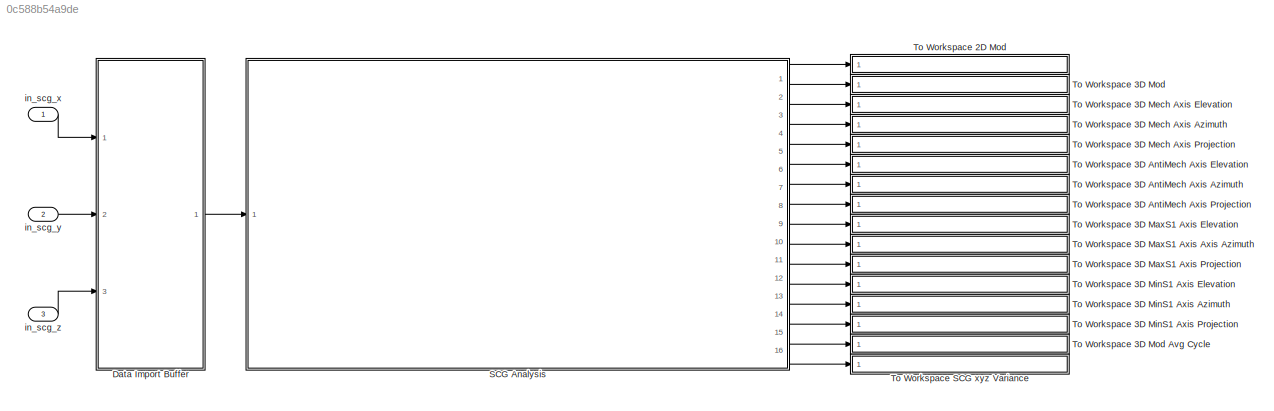
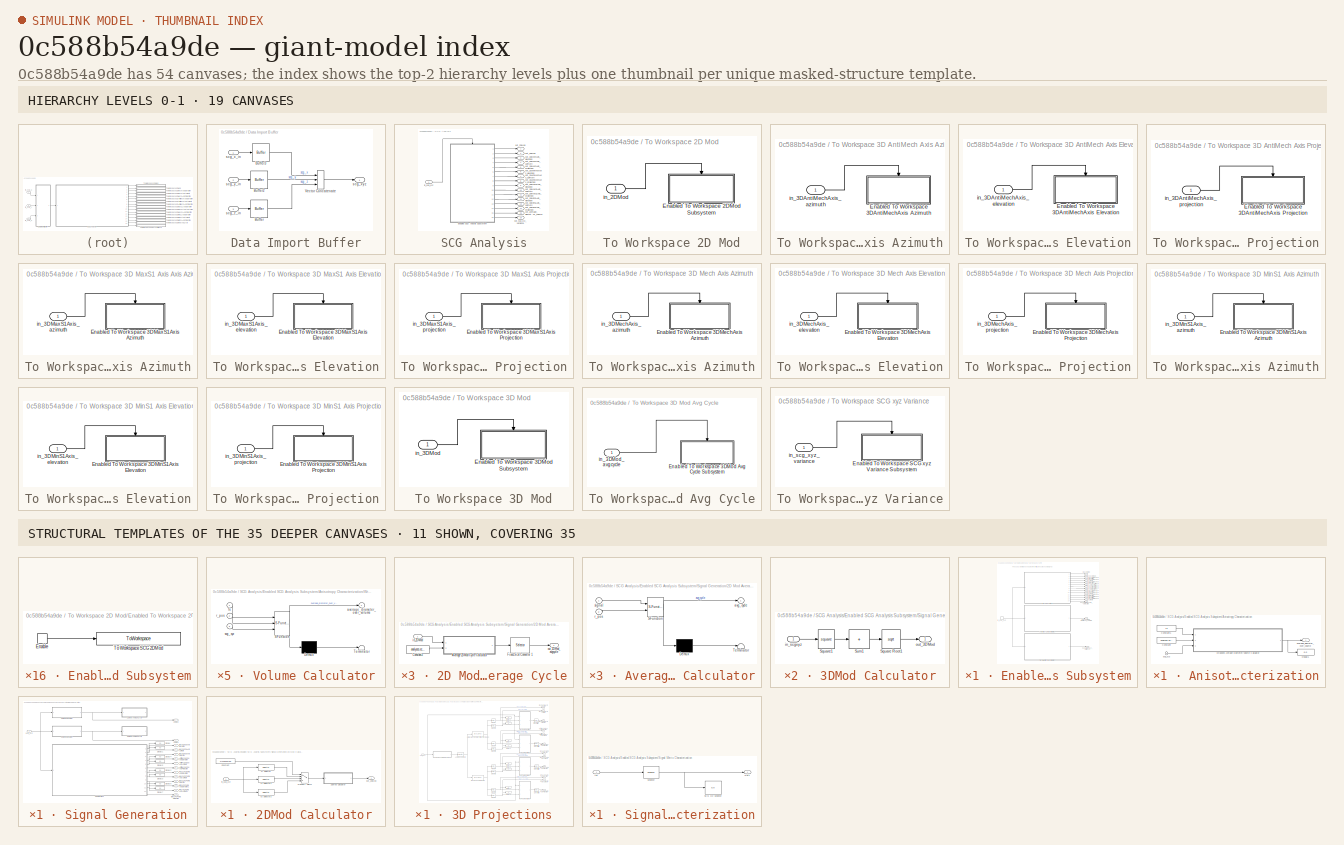
[diagram: thumbnail index - top-2 hierarchy levels (19 canvases) + 11 structural-template representatives of the remaining 35 canvases]
MODEL slx_0c588b54a9de
KIND model
CONFIG AbsTol = auto
CONFIG EnableMultiTasking = off
CONFIG FixedStep = 1/fs
CONFIG MaxStep = 1/fs
CONFIG MinStep = auto
CONFIG RelTol = 1e-3
CONFIG SampleTimeConstraint = Unconstrained
CONFIG SolverName = FixedStepDiscrete
CONFIG StartTime = 0.0
CONFIG StopTime = param_sim_time
BLOCK [SubSystem] Data Import Buffer
  Ports = [3, 1]
  RequestExecContextInheritance = off
BLOCK [Buffer] Data Import Buffer/Buffer
  N = param_tot_samples
  OutputFrames = off
BLOCK [Buffer] Data Import Buffer/Buffer2
  N = param_tot_samples
  OutputFrames = off
BLOCK [Buffer] Data Import Buffer/Buffer3
  N = param_tot_samples
  OutputFrames = off
BLOCK [Concatenate] Data Import Buffer/Vector Concatenate
  ConcatenateDimension = 2
  Mode = Multidimensional array
  NumInputs = 3
  Ports = [3, 1]
BLOCK [Inport] Data Import Buffer/scg_x_in
BLOCK [Outport] Data Import Buffer/scg_xyz
  VectorParamsAs1DForOutWhenUnconnected = off
BLOCK [Inport] Data Import Buffer/scg_y_in
  Port = 2
BLOCK [Inport] Data Import Buffer/scg_z_in
  Port = 3
BLOCK [SubSystem] SCG Analysis
  Ports = [1, 16]
  RequestExecContextInheritance = off
BLOCK [SubSystem] SCG Analysis/Enabled SCG Analysis Subsystem
  Ports = [0, 16, 1]
  RequestExecContextInheritance = off
  TreatAsAtomicUnit = on
BLOCK [SubSystem] SCG Analysis/Enabled SCG Analysis Subsystem/Anisotropy Characterization
  Ports = [1, 1]
  RequestExecContextInheritance = off
BLOCK [Constant] SCG Analysis/Enabled SCG Analysis Subsystem/Anisotropy Characterization/Constant
  Value = analyses.ecg.R
BLOCK [Constant] SCG Analysis/Enabled SCG Analysis Subsystem/Anisotropy Characterization/Constant1
  Value = fs
BLOCK [Display] SCG Analysis/Enabled SCG Analysis Subsystem/Anisotropy Characterization/Display1
  Decimation = 1
  Ports = [1]
BLOCK [SubSystem] SCG Analysis/Enabled SCG Analysis Subsystem/Anisotropy Characterization/Wrapped Average Diameter//Volume Calculator
  ErrorFcn = Stateflow.Translate.translate
  PermitHierarchicalResolution = ExplicitOnly
  Ports = [3, 1]
  RequestExecContextInheritance = off
  SFBlockType = MATLAB Function
  TreatAsAtomicUnit = on
BLOCK [Demux] SCG Analysis/Enabled SCG Analysis Subsystem/Anisotropy Characterization/Wrapped Average Diameter//Volume Calculator/ Demux 
  Outputs = 1
  Ports = [1, 1]
BLOCK [S-Function] SCG Analysis/Enabled SCG Analysis Subsystem/Anisotropy Characterization/Wrapped Average Diameter//Volume Calculator/ SFunction 
  EnableBusSupport = on
  FunctionName = sf_sfun
  PortCounts = [3 2]
  Ports = [3, 2]
  SFcnIsStateOwnerBlock = off
  SFunctionDeploymentMode = off
  Tag = Stateflow S-Function 9
BLOCK [Terminator] SCG Analysis/Enabled SCG Analysis Subsystem/Anisotropy Characterization/Wrapped Average Diameter//Volume Calculator/ Terminator 
BLOCK [Outport] SCG Analysis/Enabled SCG Analysis Subsystem/Anisotropy Characterization/Wrapped Average Diameter//Volume Calculator/average_diameter_over_volume
BLOCK [Inport] SCG Analysis/Enabled SCG Analysis Subsystem/Anisotropy Characterization/Wrapped Average Diameter//Volume Calculator/fs
BLOCK [Inport] SCG Analysis/Enabled SCG Analysis Subsystem/Anisotropy Characterization/Wrapped Average Diameter//Volume Calculator/r_pos
  Port = 2
BLOCK [Inport] SCG Analysis/Enabled SCG Analysis Subsystem/Anisotropy Characterization/Wrapped Average Diameter//Volume Calculator/scg_xyz
  Port = 3
BLOCK [Outport] SCG Analysis/Enabled SCG Analysis Subsystem/Anisotropy Characterization/average_diameter_over_volume
BLOCK [Inport] SCG Analysis/Enabled SCG Analysis Subsystem/Anisotropy Characterization/scg_xyz
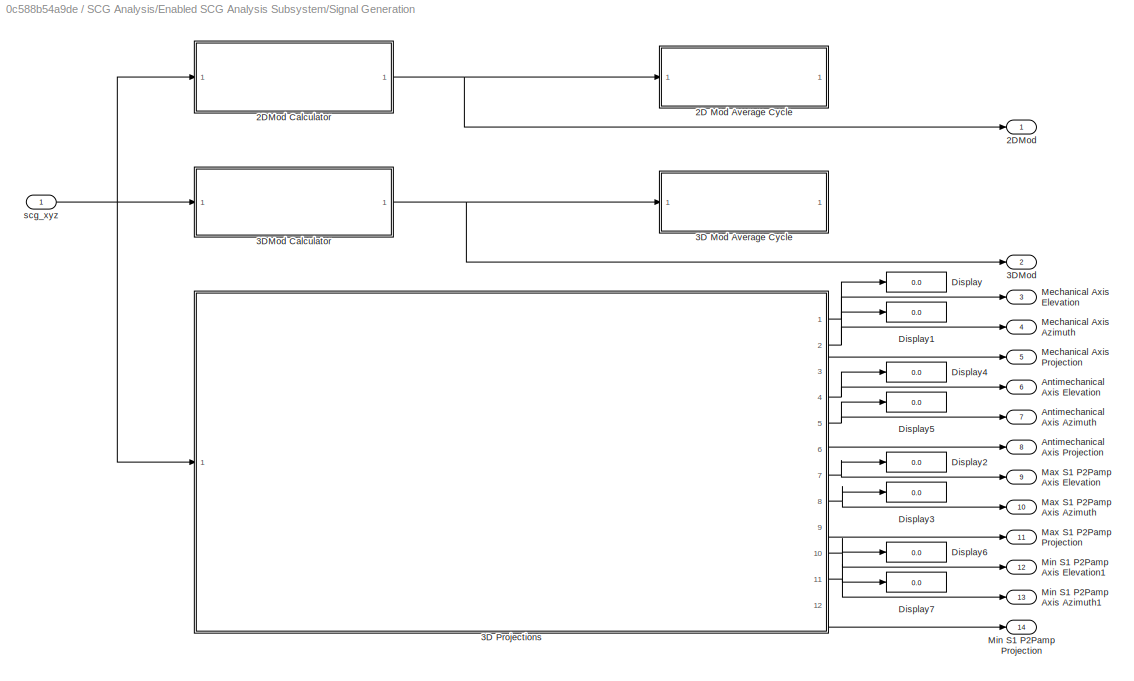
BLOCK [SubSystem] SCG Analysis/Enabled SCG Analysis Subsystem/Signal Generation
  Ports = [1, 14]
  RequestExecContextInheritance = off
BLOCK [SubSystem] SCG Analysis/Enabled SCG Analysis Subsystem/Signal Generation/2D Mod Average Cycle
  Ports = [1, 1]
  RequestExecContextInheritance = off
BLOCK [SubSystem] SCG Analysis/Enabled SCG Analysis Subsystem/Signal Generation/2D Mod Average Cycle/Average 2DMod Cycle Calculator
  ErrorFcn = Stateflow.Translate.translate
  PermitHierarchicalResolution = ExplicitOnly
  Ports = [2, 1]
  RequestExecContextInheritance = off
  SFBlockType = MATLAB Function
  TreatAsAtomicUnit = on
BLOCK [Demux] SCG Analysis/Enabled SCG Analysis Subsystem/Signal Generation/2D Mod Average Cycle/Average 2DMod Cycle Calculator/ Demux 
  Outputs = 1
  Ports = [1, 1]
BLOCK [S-Function] SCG Analysis/Enabled SCG Analysis Subsystem/Signal Generation/2D Mod Average Cycle/Average 2DMod Cycle Calculator/ SFunction 
  EnableBusSupport = on
  FunctionName = sf_sfun
  PortCounts = [2 2]
  Ports = [2, 2]
  SFcnIsStateOwnerBlock = off
  SFunctionDeploymentMode = off
  Tag = Stateflow S-Function 1
BLOCK [Terminator] SCG Analysis/Enabled SCG Analysis Subsystem/Signal Generation/2D Mod Average Cycle/Average 2DMod Cycle Calculator/ Terminator 
BLOCK [Outport] SCG Analysis/Enabled SCG Analysis Subsystem/Signal Generation/2D Mod Average Cycle/Average 2DMod Cycle Calculator/avg_cycle
  VectorParamsAs1DForOutWhenUnconnected = off
BLOCK [Inport] SCG Analysis/Enabled SCG Analysis Subsystem/Signal Generation/2D Mod Average Cycle/Average 2DMod Cycle Calculator/r_pos
  Port = 2
BLOCK [Inport] SCG Analysis/Enabled SCG Analysis Subsystem/Signal Generation/2D Mod Average Cycle/Average 2DMod Cycle Calculator/signal
BLOCK [Constant] SCG Analysis/Enabled SCG Analysis Subsystem/Signal Generation/2D Mod Average Cycle/Constant2
  Value = analyses.ecg.R
BLOCK [Selector] SCG Analysis/Enabled SCG Analysis Subsystem/Signal Generation/2D Mod Average Cycle/Fixed-Size Converter 1
  IndexOptions = Index vector (dialog),Index vector (dialog)
  Indices = [1:min(analyses.ecg.RR)],1
  NumberOfDimensions = 2
  OutputSizes = 1,1
  Ports = [1, 1]
BLOCK [Inport] SCG Analysis/Enabled SCG Analysis Subsystem/Signal Generation/2D Mod Average Cycle/in_2DMod
BLOCK [Outport] SCG Analysis/Enabled SCG Analysis Subsystem/Signal Generation/2D Mod Average Cycle/out_2DMod_avgcycle
  VectorParamsAs1DForOutWhenUnconnected = off
BLOCK [Outport] SCG Analysis/Enabled SCG Analysis Subsystem/Signal Generation/2DMod
  NameLocation = right
BLOCK [SubSystem] SCG Analysis/Enabled SCG Analysis Subsystem/Signal Generation/2DMod Calculator
  Ports = [1, 1]
  RequestExecContextInheritance = off
BLOCK [SubSystem] SCG Analysis/Enabled SCG Analysis Subsystem/Signal Generation/2DMod Calculator/2DMod Calculator
  Ports = [1, 1]
  RequestExecContextInheritance = off
BLOCK [Inport] SCG Analysis/Enabled SCG Analysis Subsystem/Signal Generation/2DMod Calculator/2DMod Calculator/2D Components
BLOCK [Outport] SCG Analysis/Enabled SCG Analysis Subsystem/Signal Generation/2DMod Calculator/2DMod Calculator/2D Modulus
  VectorParamsAs1DForOutWhenUnconnected = off
BLOCK [Sqrt] SCG Analysis/Enabled SCG Analysis Subsystem/Signal Generation/2DMod Calculator/2DMod Calculator/Square Root1
BLOCK [Math] SCG Analysis/Enabled SCG Analysis Subsystem/Signal Generation/2DMod Calculator/2DMod Calculator/Square1
  Operator = square
  Ports = [1, 1]
  SignedPower = on
BLOCK [Sum] SCG Analysis/Enabled SCG Analysis Subsystem/Signal Generation/2DMod Calculator/2DMod Calculator/Sum1
  CollapseDim = 2
  CollapseMode = Specified dimension
  IconShape = rectangular
  Inputs = +
  Ports = [1, 1]
BLOCK [Constant] SCG Analysis/Enabled SCG Analysis Subsystem/Signal Generation/2DMod Calculator/Constant
  Value = xyz2Dcombo
BLOCK [MultiPortSwitch] SCG Analysis/Enabled SCG Analysis Subsystem/Signal Generation/2DMod Calculator/Multiport Switch
  InputSameDT = off
  Ports = [4, 1]
  SaturateOnIntegerOverflow = off
BLOCK [Inport] SCG Analysis/Enabled SCG Analysis Subsystem/Signal Generation/2DMod Calculator/in_scg_xyz
BLOCK [Outport] SCG Analysis/Enabled SCG Analysis Subsystem/Signal Generation/2DMod Calculator/out_2DMod
  VectorParamsAs1DForOutWhenUnconnected = off
BLOCK [Selector] SCG Analysis/Enabled SCG Analysis Subsystem/Signal Generation/2DMod Calculator/xy Selector
  IndexOptions = Select all,Index vector (dialog)
  Indices = [1:min(analyses.ecg.RR)],[1 2]
  NumberOfDimensions = 2
  OutputSizes = 1,1
  Ports = [1, 1]
BLOCK [Selector] SCG Analysis/Enabled SCG Analysis Subsystem/Signal Generation/2DMod Calculator/xz Selector2
  IndexOptions = Select all,Index vector (dialog)
  Indices = [1:min(analyses.ecg.RR)],[1 3]
  NumberOfDimensions = 2
  OutputSizes = 1,1
  Ports = [1, 1]
BLOCK [Selector] SCG Analysis/Enabled SCG Analysis Subsystem/Signal Generation/2DMod Calculator/yz Selector1
  IndexOptions = Select all,Index vector (dialog)
  Indices = [1:min(analyses.ecg.RR)],[2 3]
  NumberOfDimensions = 2
  OutputSizes = 1,1
  Ports = [1, 1]
BLOCK [SubSystem] SCG Analysis/Enabled SCG Analysis Subsystem/Signal Generation/3D Mod Average Cycle
  Ports = [1, 1]
  RequestExecContextInheritance = off
BLOCK [SubSystem] SCG Analysis/Enabled SCG Analysis Subsystem/Signal Generation/3D Mod Average Cycle/Average 3DMod Cycle Calculator
  ErrorFcn = Stateflow.Translate.translate
  PermitHierarchicalResolution = ExplicitOnly
  Ports = [2, 1]
  RequestExecContextInheritance = off
  SFBlockType = MATLAB Function
  TreatAsAtomicUnit = on
BLOCK [Demux] SCG Analysis/Enabled SCG Analysis Subsystem/Signal Generation/3D Mod Average Cycle/Average 3DMod Cycle Calculator/ Demux 
  Outputs = 1
  Ports = [1, 1]
BLOCK [S-Function] SCG Analysis/Enabled SCG Analysis Subsystem/Signal Generation/3D Mod Average Cycle/Average 3DMod Cycle Calculator/ SFunction 
  EnableBusSupport = on
  FunctionName = sf_sfun
  PortCounts = [2 2]
  Ports = [2, 2]
  SFcnIsStateOwnerBlock = off
  SFunctionDeploymentMode = off
  Tag = Stateflow S-Function 3
BLOCK [Terminator] SCG Analysis/Enabled SCG Analysis Subsystem/Signal Generation/3D Mod Average Cycle/Average 3DMod Cycle Calculator/ Terminator 
BLOCK [Outport] SCG Analysis/Enabled SCG Analysis Subsystem/Signal Generation/3D Mod Average Cycle/Average 3DMod Cycle Calculator/avg_cycle
  VectorParamsAs1DForOutWhenUnconnected = off
BLOCK [Inport] SCG Analysis/Enabled SCG Analysis Subsystem/Signal Generation/3D Mod Average Cycle/Average 3DMod Cycle Calculator/r_pos
  Port = 2
BLOCK [Inport] SCG Analysis/Enabled SCG Analysis Subsystem/Signal Generation/3D Mod Average Cycle/Average 3DMod Cycle Calculator/signal
BLOCK [Constant] SCG Analysis/Enabled SCG Analysis Subsystem/Signal Generation/3D Mod Average Cycle/Constant1
  Value = analyses.ecg.R
BLOCK [Selector] SCG Analysis/Enabled SCG Analysis Subsystem/Signal Generation/3D Mod Average Cycle/Fixed-Size Converter 2
  IndexOptions = Index vector (dialog),Index vector (dialog)
  Indices = [1:min(analyses.ecg.RR)],1
  NumberOfDimensions = 2
  OutputSizes = 1,1
  Ports = [1, 1]
BLOCK [Inport] SCG Analysis/Enabled SCG Analysis Subsystem/Signal Generation/3D Mod Average Cycle/in_3DMod
BLOCK [Outport] SCG Analysis/Enabled SCG Analysis Subsystem/Signal Generation/3D Mod Average Cycle/out_3DMod_avgcycle
  VectorParamsAs1DForOutWhenUnconnected = off
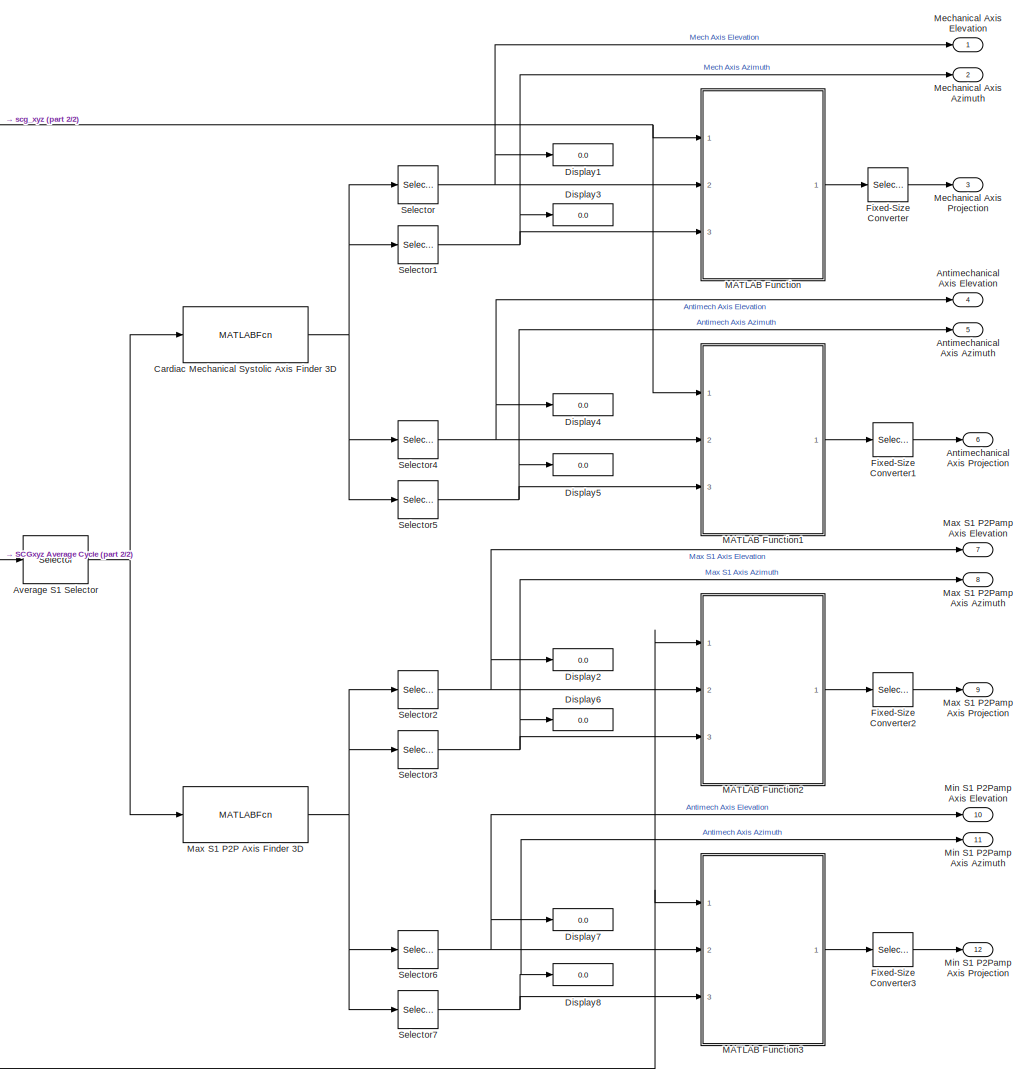
[diagram: SCG Analysis/Enabled SCG Analysis Subsystem/Signal Generation/3D Projections - part 1/2, center side, full height]
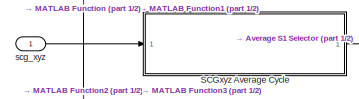
[diagram: SCG Analysis/Enabled SCG Analysis Subsystem/Signal Generation/3D Projections - part 2/2, middle left region]
BLOCK [SubSystem] SCG Analysis/Enabled SCG Analysis Subsystem/Signal Generation/3D Projections
  Ports = [1, 12]
  RequestExecContextInheritance = off
BLOCK [Outport] SCG Analysis/Enabled SCG Analysis Subsystem/Signal Generation/3D Projections/Antimechanical Axis Azimuth
  NameLocation = right
  Port = 5
BLOCK [Outport] SCG Analysis/Enabled SCG Analysis Subsystem/Signal Generation/3D Projections/Antimechanical Axis Elevation
  NameLocation = right
  Port = 4
BLOCK [Outport] SCG Analysis/Enabled SCG Analysis Subsystem/Signal Generation/3D Projections/Antimechanical Axis Projection
  NameLocation = right
  Port = 6
BLOCK [Selector] SCG Analysis/Enabled SCG Analysis Subsystem/Signal Generation/3D Projections/Average S1 Selector
  IndexOptions = Index vector (dialog),Index vector (dialog)
  Indices = [1:fs*0.2],[1 2 3]
  InputPortWidth = 3
  NumberOfDimensions = 2
  OutputSizes = 1,1
  Ports = [1, 1]
BLOCK [MATLABFcn] SCG Analysis/Enabled SCG Analysis Subsystem/Signal Generation/3D Projections/Cardiac Mechanical Systolic Axis Finder 3D
  MATLABFcn = cardiac_mech_systolic_axis_finder_3D
  Output1D = off
  OutputDimensions = 4
  Ports = [1, 1]
BLOCK [Display] SCG Analysis/Enabled SCG Analysis Subsystem/Signal Generation/3D Projections/Display1
  Decimation = 1
  Ports = [1]
BLOCK [Display] SCG Analysis/Enabled SCG Analysis Subsystem/Signal Generation/3D Projections/Display2
  Decimation = 1
  Ports = [1]
BLOCK [Display] SCG Analysis/Enabled SCG Analysis Subsystem/Signal Generation/3D Projections/Display3
  Decimation = 1
  Ports = [1]
BLOCK [Display] SCG Analysis/Enabled SCG Analysis Subsystem/Signal Generation/3D Projections/Display4
  Decimation = 1
  Ports = [1]
BLOCK [Display] SCG Analysis/Enabled SCG Analysis Subsystem/Signal Generation/3D Projections/Display5
  Decimation = 1
  Ports = [1]
BLOCK [Display] SCG Analysis/Enabled SCG Analysis Subsystem/Signal Generation/3D Projections/Display6
  Decimation = 1
  Ports = [1]
BLOCK [Display] SCG Analysis/Enabled SCG Analysis Subsystem/Signal Generation/3D Projections/Display7
  Decimation = 1
  Ports = [1]
BLOCK [Display] SCG Analysis/Enabled SCG Analysis Subsystem/Signal Generation/3D Projections/Display8
  Decimation = 1
  Ports = [1]
BLOCK [Selector] SCG Analysis/Enabled SCG Analysis Subsystem/Signal Generation/3D Projections/Fixed-Size Converter
  IndexOptions = Index vector (dialog),Index vector (dialog)
  Indices = 1,[1:param_tot_samples]
  NumberOfDimensions = 2
  OutputSizes = 1,1
  Ports = [1, 1]
BLOCK [Selector] SCG Analysis/Enabled SCG Analysis Subsystem/Signal Generation/3D Projections/Fixed-Size Converter1
  IndexOptions = Index vector (dialog),Index vector (dialog)
  Indices = 1,[1:param_tot_samples]
  NumberOfDimensions = 2
  OutputSizes = 1,1
  Ports = [1, 1]
BLOCK [Selector] SCG Analysis/Enabled SCG Analysis Subsystem/Signal Generation/3D Projections/Fixed-Size Converter2
  IndexOptions = Index vector (dialog),Index vector (dialog)
  Indices = 1,[1:param_tot_samples]
  NumberOfDimensions = 2
  OutputSizes = 1,1
  Ports = [1, 1]
BLOCK [Selector] SCG Analysis/Enabled SCG Analysis Subsystem/Signal Generation/3D Projections/Fixed-Size Converter3
  IndexOptions = Index vector (dialog),Index vector (dialog)
  Indices = 1,[1:param_tot_samples]
  NumberOfDimensions = 2
  OutputSizes = 1,1
  Ports = [1, 1]
BLOCK [SubSystem] SCG Analysis/Enabled SCG Analysis Subsystem/Signal Generation/3D Projections/MATLAB Function
  ErrorFcn = Stateflow.Translate.translate
  PermitHierarchicalResolution = ExplicitOnly
  Ports = [3, 1]
  RequestExecContextInheritance = off
  SFBlockType = MATLAB Function
  TreatAsAtomicUnit = on
BLOCK [Demux] SCG Analysis/Enabled SCG Analysis Subsystem/Signal Generation/3D Projections/MATLAB Function/ Demux 
  Outputs = 1
  Ports = [1, 1]
BLOCK [S-Function] SCG Analysis/Enabled SCG Analysis Subsystem/Signal Generation/3D Projections/MATLAB Function/ SFunction 
  EnableBusSupport = on
  FunctionName = sf_sfun
  PortCounts = [3 2]
  Ports = [3, 2]
  SFcnIsStateOwnerBlock = off
  SFunctionDeploymentMode = off
  Tag = Stateflow S-Function 2
BLOCK [Terminator] SCG Analysis/Enabled SCG Analysis Subsystem/Signal Generation/3D Projections/MATLAB Function/ Terminator 
BLOCK [Inport] SCG Analysis/Enabled SCG Analysis Subsystem/Signal Generation/3D Projections/MATLAB Function/az_scg
  Port = 3
BLOCK [Inport] SCG Analysis/Enabled SCG Analysis Subsystem/Signal Generation/3D Projections/MATLAB Function/el_scg
  Port = 2
BLOCK [Outport] SCG Analysis/Enabled SCG Analysis Subsystem/Signal Generation/3D Projections/MATLAB Function/projection
BLOCK [Inport] SCG Analysis/Enabled SCG Analysis Subsystem/Signal Generation/3D Projections/MATLAB Function/scg_xyz
BLOCK [SubSystem] SCG Analysis/Enabled SCG Analysis Subsystem/Signal Generation/3D Projections/MATLAB Function1
  ErrorFcn = Stateflow.Translate.translate
  PermitHierarchicalResolution = ExplicitOnly
  Ports = [3, 1]
  RequestExecContextInheritance = off
  SFBlockType = MATLAB Function
  TreatAsAtomicUnit = on
BLOCK [Demux] SCG Analysis/Enabled SCG Analysis Subsystem/Signal Generation/3D Projections/MATLAB Function1/ Demux 
  Outputs = 1
  Ports = [1, 1]
BLOCK [S-Function] SCG Analysis/Enabled SCG Analysis Subsystem/Signal Generation/3D Projections/MATLAB Function1/ SFunction 
  EnableBusSupport = on
  FunctionName = sf_sfun
  PortCounts = [3 2]
  Ports = [3, 2]
  SFcnIsStateOwnerBlock = off
  SFunctionDeploymentMode = off
  Tag = Stateflow S-Function 5
BLOCK [Terminator] SCG Analysis/Enabled SCG Analysis Subsystem/Signal Generation/3D Projections/MATLAB Function1/ Terminator 
BLOCK [Inport] SCG Analysis/Enabled SCG Analysis Subsystem/Signal Generation/3D Projections/MATLAB Function1/az_scg
  Port = 3
BLOCK [Inport] SCG Analysis/Enabled SCG Analysis Subsystem/Signal Generation/3D Projections/MATLAB Function1/el_scg
  Port = 2
BLOCK [Outport] SCG Analysis/Enabled SCG Analysis Subsystem/Signal Generation/3D Projections/MATLAB Function1/projection
BLOCK [Inport] SCG Analysis/Enabled SCG Analysis Subsystem/Signal Generation/3D Projections/MATLAB Function1/scg_xyz
BLOCK [SubSystem] SCG Analysis/Enabled SCG Analysis Subsystem/Signal Generation/3D Projections/MATLAB Function2
  ErrorFcn = Stateflow.Translate.translate
  PermitHierarchicalResolution = ExplicitOnly
  Ports = [3, 1]
  RequestExecContextInheritance = off
  SFBlockType = MATLAB Function
  TreatAsAtomicUnit = on
BLOCK [Demux] SCG Analysis/Enabled SCG Analysis Subsystem/Signal Generation/3D Projections/MATLAB Function2/ Demux 
  Outputs = 1
  Ports = [1, 1]
BLOCK [S-Function] SCG Analysis/Enabled SCG Analysis Subsystem/Signal Generation/3D Projections/MATLAB Function2/ SFunction 
  EnableBusSupport = on
  FunctionName = sf_sfun
  PortCounts = [3 2]
  Ports = [3, 2]
  SFcnIsStateOwnerBlock = off
  SFunctionDeploymentMode = off
  Tag = Stateflow S-Function 6
BLOCK [Terminator] SCG Analysis/Enabled SCG Analysis Subsystem/Signal Generation/3D Projections/MATLAB Function2/ Terminator 
BLOCK [Inport] SCG Analysis/Enabled SCG Analysis Subsystem/Signal Generation/3D Projections/MATLAB Function2/az_scg
  Port = 3
BLOCK [Inport] SCG Analysis/Enabled SCG Analysis Subsystem/Signal Generation/3D Projections/MATLAB Function2/el_scg
  Port = 2
BLOCK [Outport] SCG Analysis/Enabled SCG Analysis Subsystem/Signal Generation/3D Projections/MATLAB Function2/projection
BLOCK [Inport] SCG Analysis/Enabled SCG Analysis Subsystem/Signal Generation/3D Projections/MATLAB Function2/scg_xyz
BLOCK [SubSystem] SCG Analysis/Enabled SCG Analysis Subsystem/Signal Generation/3D Projections/MATLAB Function3
  ErrorFcn = Stateflow.Translate.translate
  PermitHierarchicalResolution = ExplicitOnly
  Ports = [3, 1]
  RequestExecContextInheritance = off
  SFBlockType = MATLAB Function
  TreatAsAtomicUnit = on
BLOCK [Demux] SCG Analysis/Enabled SCG Analysis Subsystem/Signal Generation/3D Projections/MATLAB Function3/ Demux 
  Outputs = 1
  Ports = [1, 1]
BLOCK [S-Function] SCG Analysis/Enabled SCG Analysis Subsystem/Signal Generation/3D Projections/MATLAB Function3/ SFunction 
  EnableBusSupport = on
  FunctionName = sf_sfun
  PortCounts = [3 2]
  Ports = [3, 2]
  SFcnIsStateOwnerBlock = off
  SFunctionDeploymentMode = off
  Tag = Stateflow S-Function 7
BLOCK [Terminator] SCG Analysis/Enabled SCG Analysis Subsystem/Signal Generation/3D Projections/MATLAB Function3/ Terminator 
BLOCK [Inport] SCG Analysis/Enabled SCG Analysis Subsystem/Signal Generation/3D Projections/MATLAB Function3/az_scg
  Port = 3
BLOCK [Inport] SCG Analysis/Enabled SCG Analysis Subsystem/Signal Generation/3D Projections/MATLAB Function3/el_scg
  Port = 2
BLOCK [Outport] SCG Analysis/Enabled SCG Analysis Subsystem/Signal Generation/3D Projections/MATLAB Function3/projection
BLOCK [Inport] SCG Analysis/Enabled SCG Analysis Subsystem/Signal Generation/3D Projections/MATLAB Function3/scg_xyz
BLOCK [MATLABFcn] SCG Analysis/Enabled SCG Analysis Subsystem/Signal Generation/3D Projections/Max S1 P2P  Axis Finder 3D
  MATLABFcn = S1_p2p_angular_projection_3D_v2_1
  Output1D = off
  OutputDimensions = 4
  Ports = [1, 1]
BLOCK [Outport] SCG Analysis/Enabled SCG Analysis Subsystem/Signal Generation/3D Projections/Max S1 P2Pamp Axis Azimuth
  NameLocation = right
  Port = 8
BLOCK [Outport] SCG Analysis/Enabled SCG Analysis Subsystem/Signal Generation/3D Projections/Max S1 P2Pamp Axis Elevation
  NameLocation = right
  Port = 7
BLOCK [Outport] SCG Analysis/Enabled SCG Analysis Subsystem/Signal Generation/3D Projections/Max S1 P2Pamp Axis Projection
  NameLocation = right
  Port = 9
BLOCK [Outport] SCG Analysis/Enabled SCG Analysis Subsystem/Signal Generation/3D Projections/Mechanical Axis Azimuth
  NameLocation = right
  Port = 2
BLOCK [Outport] SCG Analysis/Enabled SCG Analysis Subsystem/Signal Generation/3D Projections/Mechanical Axis Elevation
  NameLocation = right
BLOCK [Outport] SCG Analysis/Enabled SCG Analysis Subsystem/Signal Generation/3D Projections/Mechanical Axis Projection
  NameLocation = right
  Port = 3
BLOCK [Outport] SCG Analysis/Enabled SCG Analysis Subsystem/Signal Generation/3D Projections/Min S1 P2Pamp Axis Azimuth
  NameLocation = right
  Port = 11
BLOCK [Outport] SCG Analysis/Enabled SCG Analysis Subsystem/Signal Generation/3D Projections/Min S1 P2Pamp Axis Elevation
  NameLocation = right
  Port = 10
BLOCK [Outport] SCG Analysis/Enabled SCG Analysis Subsystem/Signal Generation/3D Projections/Min S1 P2Pamp Axis Projection
  NameLocation = right
  Port = 12
BLOCK [SubSystem] SCG Analysis/Enabled SCG Analysis Subsystem/Signal Generation/3D Projections/SCGxyz Average Cycle
  Ports = [1, 1]
  RequestExecContextInheritance = off
BLOCK [SubSystem] SCG Analysis/Enabled SCG Analysis Subsystem/Signal Generation/3D Projections/SCGxyz Average Cycle/Average SCGxyz Cycle Calculator
  ErrorFcn = Stateflow.Translate.translate
  PermitHierarchicalResolution = ExplicitOnly
  Ports = [2, 1]
  RequestExecContextInheritance = off
  SFBlockType = MATLAB Function
  TreatAsAtomicUnit = on
BLOCK [Demux] SCG Analysis/Enabled SCG Analysis Subsystem/Signal Generation/3D Projections/SCGxyz Average Cycle/Average SCGxyz Cycle Calculator/ Demux 
  Outputs = 1
  Ports = [1, 1]
BLOCK [S-Function] SCG Analysis/Enabled SCG Analysis Subsystem/Signal Generation/3D Projections/SCGxyz Average Cycle/Average SCGxyz Cycle Calculator/ SFunction 
  EnableBusSupport = on
  FunctionName = sf_sfun
  PortCounts = [2 2]
  Ports = [2, 2]
  SFcnIsStateOwnerBlock = off
  SFunctionDeploymentMode = off
  Tag = Stateflow S-Function 4
BLOCK [Terminator] SCG Analysis/Enabled SCG Analysis Subsystem/Signal Generation/3D Projections/SCGxyz Average Cycle/Average SCGxyz Cycle Calculator/ Terminator 
BLOCK [Inport] SCG Analysis/Enabled SCG Analysis Subsystem/Signal Generation/3D Projections/SCGxyz Average Cycle/Average SCGxyz Cycle Calculator/r_pos
  Port = 2
BLOCK [Inport] SCG Analysis/Enabled SCG Analysis Subsystem/Signal Generation/3D Projections/SCGxyz Average Cycle/Average SCGxyz Cycle Calculator/scgxyz
BLOCK [Outport] SCG Analysis/Enabled SCG Analysis Subsystem/Signal Generation/3D Projections/SCGxyz Average Cycle/Average SCGxyz Cycle Calculator/scgxyz_avgcycle
  VectorParamsAs1DForOutWhenUnconnected = off
BLOCK [Constant] SCG Analysis/Enabled SCG Analysis Subsystem/Signal Generation/3D Projections/SCGxyz Average Cycle/Constant
  Value = analyses.ecg.R
BLOCK [Selector] SCG Analysis/Enabled SCG Analysis Subsystem/Signal Generation/3D Projections/SCGxyz Average Cycle/Fixed-Size Converter 2
  IndexOptions = Index vector (dialog),Index vector (dialog)
  Indices = [1:min(analyses.ecg.RR)],[1:3]
  NumberOfDimensions = 2
  OutputSizes = 1,1
  Ports = [1, 1]
BLOCK [Inport] SCG Analysis/Enabled SCG Analysis Subsystem/Signal Generation/3D Projections/SCGxyz Average Cycle/in_scgxyz
BLOCK [Outport] SCG Analysis/Enabled SCG Analysis Subsystem/Signal Generation/3D Projections/SCGxyz Average Cycle/out_scgxyz_avgcycle
  VectorParamsAs1DForOutWhenUnconnected = off
BLOCK [Selector] SCG Analysis/Enabled SCG Analysis Subsystem/Signal Generation/3D Projections/Selector
  IndexOptions = Index vector (dialog)
  Indices = [1]
  InputPortWidth = 4
  OutputSizes = 1
  Ports = [1, 1]
BLOCK [Selector] SCG Analysis/Enabled SCG Analysis Subsystem/Signal Generation/3D Projections/Selector1
  IndexOptions = Index vector (dialog)
  Indices = [2]
  InputPortWidth = 4
  OutputSizes = 1
  Ports = [1, 1]
BLOCK [Selector] SCG Analysis/Enabled SCG Analysis Subsystem/Signal Generation/3D Projections/Selector2
  IndexOptions = Index vector (dialog)
  Indices = [1]
  InputPortWidth = 4
  OutputSizes = 1
  Ports = [1, 1]
BLOCK [Selector] SCG Analysis/Enabled SCG Analysis Subsystem/Signal Generation/3D Projections/Selector3
  IndexOptions = Index vector (dialog)
  Indices = [2]
  InputPortWidth = 4
  OutputSizes = 1
  Ports = [1, 1]
BLOCK [Selector] SCG Analysis/Enabled SCG Analysis Subsystem/Signal Generation/3D Projections/Selector4
  IndexOptions = Index vector (dialog)
  Indices = [3]
  InputPortWidth = 4
  OutputSizes = 1
  Ports = [1, 1]
BLOCK [Selector] SCG Analysis/Enabled SCG Analysis Subsystem/Signal Generation/3D Projections/Selector5
  IndexOptions = Index vector (dialog)
  Indices = [4]
  InputPortWidth = 4
  OutputSizes = 1
  Ports = [1, 1]
BLOCK [Selector] SCG Analysis/Enabled SCG Analysis Subsystem/Signal Generation/3D Projections/Selector6
  IndexOptions = Index vector (dialog)
  Indices = [3]
  InputPortWidth = 4
  OutputSizes = 1
  Ports = [1, 1]
BLOCK [Selector] SCG Analysis/Enabled SCG Analysis Subsystem/Signal Generation/3D Projections/Selector7
  IndexOptions = Index vector (dialog)
  Indices = [4]
  InputPortWidth = 4
  OutputSizes = 1
  Ports = [1, 1]
BLOCK [Inport] SCG Analysis/Enabled SCG Analysis Subsystem/Signal Generation/3D Projections/scg_xyz
BLOCK [Outport] SCG Analysis/Enabled SCG Analysis Subsystem/Signal Generation/3DMod
  NameLocation = right
  Port = 2
BLOCK [SubSystem] SCG Analysis/Enabled SCG Analysis Subsystem/Signal Generation/3DMod Calculator
  Ports = [1, 1]
  RequestExecContextInheritance = off
BLOCK [Sqrt] SCG Analysis/Enabled SCG Analysis Subsystem/Signal Generation/3DMod Calculator/Square Root1
BLOCK [Math] SCG Analysis/Enabled SCG Analysis Subsystem/Signal Generation/3DMod Calculator/Square1
  Operator = square
  Ports = [1, 1]
  SignedPower = on
BLOCK [Sum] SCG Analysis/Enabled SCG Analysis Subsystem/Signal Generation/3DMod Calculator/Sum1
  CollapseDim = 2
  CollapseMode = Specified dimension
  IconShape = rectangular
  Inputs = +
  Ports = [1, 1]
BLOCK [Inport] SCG Analysis/Enabled SCG Analysis Subsystem/Signal Generation/3DMod Calculator/in_scgxyz
BLOCK [Outport] SCG Analysis/Enabled SCG Analysis Subsystem/Signal Generation/3DMod Calculator/out_3DMod
  VectorParamsAs1DForOutWhenUnconnected = off
BLOCK [Outport] SCG Analysis/Enabled SCG Analysis Subsystem/Signal Generation/Antimechanical Axis Azimuth
  NameLocation = right
  Port = 7
BLOCK [Outport] SCG Analysis/Enabled SCG Analysis Subsystem/Signal Generation/Antimechanical Axis Elevation
  NameLocation = right
  Port = 6
BLOCK [Outport] SCG Analysis/Enabled SCG Analysis Subsystem/Signal Generation/Antimechanical Axis Projection
  NameLocation = right
  Port = 8
BLOCK [Display] SCG Analysis/Enabled SCG Analysis Subsystem/Signal Generation/Display
  Decimation = 1
  Ports = [1]
BLOCK [Display] SCG Analysis/Enabled SCG Analysis Subsystem/Signal Generation/Display1
  Decimation = 1
  Ports = [1]
BLOCK [Display] SCG Analysis/Enabled SCG Analysis Subsystem/Signal Generation/Display2
  Decimation = 1
  Ports = [1]
BLOCK [Display] SCG Analysis/Enabled SCG Analysis Subsystem/Signal Generation/Display3
  Decimation = 1
  Ports = [1]
BLOCK [Display] SCG Analysis/Enabled SCG Analysis Subsystem/Signal Generation/Display4
  Decimation = 1
  Ports = [1]
BLOCK [Display] SCG Analysis/Enabled SCG Analysis Subsystem/Signal Generation/Display5
  Decimation = 1
  Ports = [1]
BLOCK [Display] SCG Analysis/Enabled SCG Analysis Subsystem/Signal Generation/Display6
  Decimation = 1
  Ports = [1]
BLOCK [Display] SCG Analysis/Enabled SCG Analysis Subsystem/Signal Generation/Display7
  Decimation = 1
  Ports = [1]
BLOCK [Outport] SCG Analysis/Enabled SCG Analysis Subsystem/Signal Generation/Max S1 P2Pamp Axis Azimuth
  NameLocation = right
  Port = 10
BLOCK [Outport] SCG Analysis/Enabled SCG Analysis Subsystem/Signal Generation/Max S1 P2Pamp Axis Elevation
  NameLocation = right
  Port = 9
BLOCK [Outport] SCG Analysis/Enabled SCG Analysis Subsystem/Signal Generation/Max S1 P2Pamp Projection
  NameLocation = right
  Port = 11
BLOCK [Outport] SCG Analysis/Enabled SCG Analysis Subsystem/Signal Generation/Mechanical Axis Azimuth
  NameLocation = right
  Port = 4
BLOCK [Outport] SCG Analysis/Enabled SCG Analysis Subsystem/Signal Generation/Mechanical Axis Elevation
  NameLocation = right
  Port = 3
BLOCK [Outport] SCG Analysis/Enabled SCG Analysis Subsystem/Signal Generation/Mechanical Axis Projection
  NameLocation = right
  Port = 5
BLOCK [Outport] SCG Analysis/Enabled SCG Analysis Subsystem/Signal Generation/Min S1 P2Pamp Axis Azimuth1
  NameLocation = right
  Port = 13
BLOCK [Outport] SCG Analysis/Enabled SCG Analysis Subsystem/Signal Generation/Min S1 P2Pamp Axis Elevation1
  NameLocation = right
  Port = 12
BLOCK [Outport] SCG Analysis/Enabled SCG Analysis Subsystem/Signal Generation/Min S1 P2Pamp Projection
  NameLocation = right
  Port = 14
BLOCK [Inport] SCG Analysis/Enabled SCG Analysis Subsystem/Signal Generation/scg_xyz
BLOCK [SubSystem] SCG Analysis/Enabled SCG Analysis Subsystem/Signal Metric Characterization
  Ports = [1, 1]
  RequestExecContextInheritance = off
BLOCK [Inport] SCG Analysis/Enabled SCG Analysis Subsystem/Signal Metric Characterization/In1
BLOCK [Outport] SCG Analysis/Enabled SCG Analysis Subsystem/Signal Metric Characterization/Out1
BLOCK [Display] SCG Analysis/Enabled SCG Analysis Subsystem/Signal Metric Characterization/SCG xyz Variance
  Decimation = 1
  Ports = [1]
BLOCK [Reference] SCG Analysis/Enabled SCG Analysis Subsystem/Signal Metric Characterization/Variance  REF=dspstat3/Variance
  Ports = [1, 1]
  SourceBlock = dspstat3/Variance
  SourceProductBaseCode = DS
  SourceType = Variance
  UserDataPersistent = on
BLOCK [EnablePort] SCG Analysis/Enabled SCG Analysis Subsystem/in_scg_xyz
  Ports = [0, 1]
  PropagateVarSize = During execution
  ShowOutputPort = on
BLOCK [Outport] SCG Analysis/Enabled SCG Analysis Subsystem/out_2DMod
  NameLocation = right
  VectorParamsAs1DForOutWhenUnconnected = off
BLOCK [Outport] SCG Analysis/Enabled SCG Analysis Subsystem/out_3DAntiMechAxis_azimuth
  NameLocation = right
  Port = 7
  VectorParamsAs1DForOutWhenUnconnected = off
BLOCK [Outport] SCG Analysis/Enabled SCG Analysis Subsystem/out_3DAntiMechAxis_elevation
  NameLocation = right
  Port = 6
  VectorParamsAs1DForOutWhenUnconnected = off
BLOCK [Outport] SCG Analysis/Enabled SCG Analysis Subsystem/out_3DAntiMechAxis_projection
  NameLocation = right
  Port = 8
  VectorParamsAs1DForOutWhenUnconnected = off
BLOCK [Outport] SCG Analysis/Enabled SCG Analysis Subsystem/out_3DMaxS1Axis_azimuth
  NameLocation = right
  Port = 10
  VectorParamsAs1DForOutWhenUnconnected = off
BLOCK [Outport] SCG Analysis/Enabled SCG Analysis Subsystem/out_3DMaxS1Axis_elevation
  NameLocation = right
  Port = 9
  VectorParamsAs1DForOutWhenUnconnected = off
BLOCK [Outport] SCG Analysis/Enabled SCG Analysis Subsystem/out_3DMaxS1Axis_projection
  NameLocation = right
  Port = 11
  VectorParamsAs1DForOutWhenUnconnected = off
BLOCK [Outport] SCG Analysis/Enabled SCG Analysis Subsystem/out_3DMechAxis_azimuth
  NameLocation = right
  Port = 4
  VectorParamsAs1DForOutWhenUnconnected = off
BLOCK [Outport] SCG Analysis/Enabled SCG Analysis Subsystem/out_3DMechAxis_elevation
  NameLocation = right
  Port = 3
  VectorParamsAs1DForOutWhenUnconnected = off
BLOCK [Outport] SCG Analysis/Enabled SCG Analysis Subsystem/out_3DMechAxis_projection
  NameLocation = right
  Port = 5
  VectorParamsAs1DForOutWhenUnconnected = off
BLOCK [Outport] SCG Analysis/Enabled SCG Analysis Subsystem/out_3DMinS1Axis_azimuth
  NameLocation = right
  Port = 13
  VectorParamsAs1DForOutWhenUnconnected = off
BLOCK [Outport] SCG Analysis/Enabled SCG Analysis Subsystem/out_3DMinS1Axis_elevation
  NameLocation = right
  Port = 12
  VectorParamsAs1DForOutWhenUnconnected = off
BLOCK [Outport] SCG Analysis/Enabled SCG Analysis Subsystem/out_3DMinS1Axis_projection
  NameLocation = right
  Port = 14
  VectorParamsAs1DForOutWhenUnconnected = off
BLOCK [Outport] SCG Analysis/Enabled SCG Analysis Subsystem/out_3DMod
  NameLocation = right
  Port = 2
  VectorParamsAs1DForOutWhenUnconnected = off
BLOCK [Outport] SCG Analysis/Enabled SCG Analysis Subsystem/out_average_diameter_over_volume
  Port = 15
  VectorParamsAs1DForOutWhenUnconnected = off
BLOCK [Outport] SCG Analysis/Enabled SCG Analysis Subsystem/out_scg_xyz_variance
  Port = 16
  VectorParamsAs1DForOutWhenUnconnected = off
BLOCK [Inport] SCG Analysis/in_scg_xyz
BLOCK [Outport] SCG Analysis/out_2DMod
  NameLocation = right
  VectorParamsAs1DForOutWhenUnconnected = off
BLOCK [Outport] SCG Analysis/out_3DAntiMechAxis_azimuth
  NameLocation = right
  Port = 7
  VectorParamsAs1DForOutWhenUnconnected = off
BLOCK [Outport] SCG Analysis/out_3DAntiMechAxis_elevation
  NameLocation = right
  Port = 6
  VectorParamsAs1DForOutWhenUnconnected = off
BLOCK [Outport] SCG Analysis/out_3DAntiMechAxis_projection
  NameLocation = right
  Port = 8
  VectorParamsAs1DForOutWhenUnconnected = off
BLOCK [Outport] SCG Analysis/out_3DMaxS1Axis_azimuth
  NameLocation = right
  Port = 10
  VectorParamsAs1DForOutWhenUnconnected = off
BLOCK [Outport] SCG Analysis/out_3DMaxS1Axis_elevation
  NameLocation = right
  Port = 9
  VectorParamsAs1DForOutWhenUnconnected = off
BLOCK [Outport] SCG Analysis/out_3DMaxS1Axis_projection
  NameLocation = right
  Port = 11
  VectorParamsAs1DForOutWhenUnconnected = off
BLOCK [Outport] SCG Analysis/out_3DMechAxis_azimuth
  NameLocation = right
  Port = 4
  VectorParamsAs1DForOutWhenUnconnected = off
BLOCK [Outport] SCG Analysis/out_3DMechAxis_elevation
  NameLocation = right
  Port = 3
  VectorParamsAs1DForOutWhenUnconnected = off
BLOCK [Outport] SCG Analysis/out_3DMechAxis_projection
  NameLocation = right
  Port = 5
  VectorParamsAs1DForOutWhenUnconnected = off
BLOCK [Outport] SCG Analysis/out_3DMinS1Axis_azimuth
  NameLocation = right
  Port = 13
  VectorParamsAs1DForOutWhenUnconnected = off
BLOCK [Outport] SCG Analysis/out_3DMinS1Axis_elevation
  NameLocation = right
  Port = 12
  VectorParamsAs1DForOutWhenUnconnected = off
BLOCK [Outport] SCG Analysis/out_3DMinS1Axis_projection
  NameLocation = right
  Port = 14
  VectorParamsAs1DForOutWhenUnconnected = off
BLOCK [Outport] SCG Analysis/out_3DMod
  NameLocation = right
  Port = 2
  VectorParamsAs1DForOutWhenUnconnected = off
BLOCK [Outport] SCG Analysis/out_average_diameter_over_volume
  NameLocation = right
  Port = 15
  VectorParamsAs1DForOutWhenUnconnected = off
BLOCK [Outport] SCG Analysis/out_scg_xyz_variance
  NameLocation = right
  Port = 16
  VectorParamsAs1DForOutWhenUnconnected = off
BLOCK [SubSystem] To Workspace 2D Mod
  NameLocation = right
  Ports = [1]
  RequestExecContextInheritance = off
BLOCK [SubSystem] To Workspace 2D Mod/Enabled To Workspace 2DMod Subsystem
  Ports = [0, 0, 1]
  RequestExecContextInheritance = off
  TreatAsAtomicUnit = on
BLOCK [EnablePort] To Workspace 2D Mod/Enabled To Workspace 2DMod Subsystem/Enable
  Ports = [0, 1]
  PropagateVarSize = During execution
  ShowOutputPort = on
BLOCK [ToWorkspace] To Workspace 2D Mod/Enabled To Workspace 2DMod Subsystem/To Workspace SCG 2DMod
  FixptAsFi = on
  MaxDataPoints = inf
  Ports = [1]
  SampleTime = -1
  SaveFormat = Structure
  VariableName = out_scg_analysis_2DMod
BLOCK [Inport] To Workspace 2D Mod/in_2DMod
BLOCK [SubSystem] To Workspace 3D AntiMech Axis Azimuth
  NameLocation = right
  Ports = [1]
  RequestExecContextInheritance = off
BLOCK [SubSystem] To Workspace 3D AntiMech Axis Azimuth/Enabled To Workspace 3DAntiMechAxis Azimuth
  Ports = [0, 0, 1]
  RequestExecContextInheritance = off
  TreatAsAtomicUnit = on
BLOCK [EnablePort] To Workspace 3D AntiMech Axis Azimuth/Enabled To Workspace 3DAntiMechAxis Azimuth/Enable
  Ports = [0, 1]
  PropagateVarSize = During execution
  ShowOutputPort = on
BLOCK [ToWorkspace] To Workspace 3D AntiMech Axis Azimuth/Enabled To Workspace 3DAntiMechAxis Azimuth/To Workspace SCG 3DAntiMechAxis Azimuth
  FixptAsFi = on
  MaxDataPoints = inf
  Ports = [1]
  SampleTime = -1
  SaveFormat = Structure
  VariableName = out_scg_analysis_3DAntiMechAxis_azimuth
BLOCK [Inport] To Workspace 3D AntiMech Axis Azimuth/in_3DAntiMechAxis_azimuth
BLOCK [SubSystem] To Workspace 3D AntiMech Axis Elevation
  NameLocation = right
  Ports = [1]
  RequestExecContextInheritance = off
BLOCK [SubSystem] To Workspace 3D AntiMech Axis Elevation/Enabled To Workspace 3DAntiMechAxis Elevation
  Ports = [0, 0, 1]
  RequestExecContextInheritance = off
  TreatAsAtomicUnit = on
BLOCK [EnablePort] To Workspace 3D AntiMech Axis Elevation/Enabled To Workspace 3DAntiMechAxis Elevation/Enable
  Ports = [0, 1]
  PropagateVarSize = During execution
  ShowOutputPort = on
BLOCK [ToWorkspace] To Workspace 3D AntiMech Axis Elevation/Enabled To Workspace 3DAntiMechAxis Elevation/To Workspace SCG 3DAntiMechAxis Elevation
  FixptAsFi = on
  MaxDataPoints = inf
  Ports = [1]
  SampleTime = -1
  SaveFormat = Structure
  VariableName = out_scg_analysis_3DAntiMechAxis_elevation
BLOCK [Inport] To Workspace 3D AntiMech Axis Elevation/in_3DAntiMechAxis_elevation
BLOCK [SubSystem] To Workspace 3D AntiMech Axis Projection
  NameLocation = right
  Ports = [1]
  RequestExecContextInheritance = off
BLOCK [SubSystem] To Workspace 3D AntiMech Axis Projection/Enabled To Workspace 3DAntiMechAxis Projection
  Ports = [0, 0, 1]
  RequestExecContextInheritance = off
  TreatAsAtomicUnit = on
BLOCK [EnablePort] To Workspace 3D AntiMech Axis Projection/Enabled To Workspace 3DAntiMechAxis Projection/Enable
  Ports = [0, 1]
  PropagateVarSize = During execution
  ShowOutputPort = on
BLOCK [ToWorkspace] To Workspace 3D AntiMech Axis Projection/Enabled To Workspace 3DAntiMechAxis Projection/To Workspace SCG 3DAntiMechAxis Projection
  FixptAsFi = on
  MaxDataPoints = inf
  Ports = [1]
  SampleTime = -1
  SaveFormat = Structure
  VariableName = out_scg_analysis_3DAntiMechAxis_projection
BLOCK [Inport] To Workspace 3D AntiMech Axis Projection/in_3DAntiMechAxis_projection
BLOCK [SubSystem] To Workspace 3D MaxS1 Axis Axis Azimuth
  NameLocation = right
  Ports = [1]
  RequestExecContextInheritance = off
BLOCK [SubSystem] To Workspace 3D MaxS1 Axis Axis Azimuth/Enabled To Workspace 3DMaxS1Axis Azimuth
  Ports = [0, 0, 1]
  RequestExecContextInheritance = off
  TreatAsAtomicUnit = on
BLOCK [EnablePort] To Workspace 3D MaxS1 Axis Axis Azimuth/Enabled To Workspace 3DMaxS1Axis Azimuth/Enable
  Ports = [0, 1]
  PropagateVarSize = During execution
  ShowOutputPort = on
BLOCK [ToWorkspace] To Workspace 3D MaxS1 Axis Axis Azimuth/Enabled To Workspace 3DMaxS1Axis Azimuth/To Workspace SCG 3DMaxS1Axis Azimuth
  FixptAsFi = on
  MaxDataPoints = inf
  Ports = [1]
  SampleTime = -1
  SaveFormat = Structure
  VariableName = out_scg_analysis_3DMaxS1Axis_azimuth
BLOCK [Inport] To Workspace 3D MaxS1 Axis Axis Azimuth/in_3DMaxS1Axis_azimuth
BLOCK [SubSystem] To Workspace 3D MaxS1 Axis Elevation
  NameLocation = right
  Ports = [1]
  RequestExecContextInheritance = off
BLOCK [SubSystem] To Workspace 3D MaxS1 Axis Elevation/Enabled To Workspace 3DMaxS1Axis Elevation
  Ports = [0, 0, 1]
  RequestExecContextInheritance = off
  TreatAsAtomicUnit = on
BLOCK [EnablePort] To Workspace 3D MaxS1 Axis Elevation/Enabled To Workspace 3DMaxS1Axis Elevation/Enable
  Ports = [0, 1]
  PropagateVarSize = During execution
  ShowOutputPort = on
BLOCK [ToWorkspace] To Workspace 3D MaxS1 Axis Elevation/Enabled To Workspace 3DMaxS1Axis Elevation/To Workspace SCG 3DMaxS1Axis Elevation
  FixptAsFi = on
  MaxDataPoints = inf
  Ports = [1]
  SampleTime = -1
  SaveFormat = Structure
  VariableName = out_scg_analysis_3DMaxS1Axis_elevation
BLOCK [Inport] To Workspace 3D MaxS1 Axis Elevation/in_3DMaxS1Axis_elevation
BLOCK [SubSystem] To Workspace 3D MaxS1 Axis Projection
  NameLocation = right
  Ports = [1]
  RequestExecContextInheritance = off
BLOCK [SubSystem] To Workspace 3D MaxS1 Axis Projection/Enabled To Workspace 3DMaxS1Axis Projection
  Ports = [0, 0, 1]
  RequestExecContextInheritance = off
  TreatAsAtomicUnit = on
BLOCK [EnablePort] To Workspace 3D MaxS1 Axis Projection/Enabled To Workspace 3DMaxS1Axis Projection/Enable
  Ports = [0, 1]
  PropagateVarSize = During execution
  ShowOutputPort = on
BLOCK [ToWorkspace] To Workspace 3D MaxS1 Axis Projection/Enabled To Workspace 3DMaxS1Axis Projection/To Workspace SCG 3DMaxS1Axis Projection
  FixptAsFi = on
  MaxDataPoints = inf
  Ports = [1]
  SampleTime = -1
  SaveFormat = Structure
  VariableName = out_scg_analysis_3DMaxS1Axis_projection
BLOCK [Inport] To Workspace 3D MaxS1 Axis Projection/in_3DMaxS1Axis_projection
BLOCK [SubSystem] To Workspace 3D Mech Axis Azimuth
  NameLocation = right
  Ports = [1]
  RequestExecContextInheritance = off
BLOCK [SubSystem] To Workspace 3D Mech Axis Azimuth/Enabled To Workspace 3DMechAxis Azimuth
  Ports = [0, 0, 1]
  RequestExecContextInheritance = off
  TreatAsAtomicUnit = on
BLOCK [EnablePort] To Workspace 3D Mech Axis Azimuth/Enabled To Workspace 3DMechAxis Azimuth/Enable
  Ports = [0, 1]
  PropagateVarSize = During execution
  ShowOutputPort = on
BLOCK [ToWorkspace] To Workspace 3D Mech Axis Azimuth/Enabled To Workspace 3DMechAxis Azimuth/To Workspace SCG 3DMechAxis Azimuth
  FixptAsFi = on
  MaxDataPoints = inf
  Ports = [1]
  SampleTime = -1
  SaveFormat = Structure
  VariableName = out_scg_analysis_3DMechAxis_azimuth
BLOCK [Inport] To Workspace 3D Mech Axis Azimuth/in_3DMechAxis_azimuth
BLOCK [SubSystem] To Workspace 3D Mech Axis Elevation
  NameLocation = right
  Ports = [1]
  RequestExecContextInheritance = off
BLOCK [SubSystem] To Workspace 3D Mech Axis Elevation/Enabled To Workspace 3DMechAxis Elevation
  Ports = [0, 0, 1]
  RequestExecContextInheritance = off
  TreatAsAtomicUnit = on
BLOCK [EnablePort] To Workspace 3D Mech Axis Elevation/Enabled To Workspace 3DMechAxis Elevation/Enable
  Ports = [0, 1]
  PropagateVarSize = During execution
  ShowOutputPort = on
BLOCK [ToWorkspace] To Workspace 3D Mech Axis Elevation/Enabled To Workspace 3DMechAxis Elevation/To Workspace SCG 3DMechAxis Elevation
  FixptAsFi = on
  MaxDataPoints = inf
  Ports = [1]
  SampleTime = -1
  SaveFormat = Structure
  VariableName = out_scg_analysis_3DMechAxis_elevation
BLOCK [Inport] To Workspace 3D Mech Axis Elevation/in_3DMechAxis_elevation
BLOCK [SubSystem] To Workspace 3D Mech Axis Projection
  NameLocation = right
  Ports = [1]
  RequestExecContextInheritance = off
BLOCK [SubSystem] To Workspace 3D Mech Axis Projection/Enabled To Workspace 3DMechAxis Projection
  Ports = [0, 0, 1]
  RequestExecContextInheritance = off
  TreatAsAtomicUnit = on
BLOCK [EnablePort] To Workspace 3D Mech Axis Projection/Enabled To Workspace 3DMechAxis Projection/Enable
  Ports = [0, 1]
  PropagateVarSize = During execution
  ShowOutputPort = on
BLOCK [ToWorkspace] To Workspace 3D Mech Axis Projection/Enabled To Workspace 3DMechAxis Projection/To Workspace SCG 3DMechAxis Projection
  FixptAsFi = on
  MaxDataPoints = inf
  Ports = [1]
  SampleTime = -1
  SaveFormat = Structure
  VariableName = out_scg_analysis_3DMechAxis_projection
BLOCK [Inport] To Workspace 3D Mech Axis Projection/in_3DMechAxis_projection
BLOCK [SubSystem] To Workspace 3D MinS1 Axis Azimuth
  NameLocation = right
  Ports = [1]
  RequestExecContextInheritance = off
BLOCK [SubSystem] To Workspace 3D MinS1 Axis Azimuth/Enabled To Workspace 3DMinS1Axis Azimuth
  Ports = [0, 0, 1]
  RequestExecContextInheritance = off
  TreatAsAtomicUnit = on
BLOCK [EnablePort] To Workspace 3D MinS1 Axis Azimuth/Enabled To Workspace 3DMinS1Axis Azimuth/Enable
  Ports = [0, 1]
  PropagateVarSize = During execution
  ShowOutputPort = on
BLOCK [ToWorkspace] To Workspace 3D MinS1 Axis Azimuth/Enabled To Workspace 3DMinS1Axis Azimuth/To Workspace SCG 3DMinS1Axis Azimuth
  FixptAsFi = on
  MaxDataPoints = inf
  Ports = [1]
  SampleTime = -1
  SaveFormat = Structure
  VariableName = out_scg_analysis_3DMinS1Axis_azimuth
BLOCK [Inport] To Workspace 3D MinS1 Axis Azimuth/in_3DMinS1Axis_azimuth
BLOCK [SubSystem] To Workspace 3D MinS1 Axis Elevation
  NameLocation = right
  Ports = [1]
  RequestExecContextInheritance = off
BLOCK [SubSystem] To Workspace 3D MinS1 Axis Elevation/Enabled To Workspace 3DMinS1Axis Elevation
  Ports = [0, 0, 1]
  RequestExecContextInheritance = off
  TreatAsAtomicUnit = on
BLOCK [EnablePort] To Workspace 3D MinS1 Axis Elevation/Enabled To Workspace 3DMinS1Axis Elevation/Enable
  Ports = [0, 1]
  PropagateVarSize = During execution
  ShowOutputPort = on
BLOCK [ToWorkspace] To Workspace 3D MinS1 Axis Elevation/Enabled To Workspace 3DMinS1Axis Elevation/To Workspace SCG 3DMinS1Axis Elevation
  FixptAsFi = on
  MaxDataPoints = inf
  Ports = [1]
  SampleTime = -1
  SaveFormat = Structure
  VariableName = out_scg_analysis_3DMinS1Axis_elevation
BLOCK [Inport] To Workspace 3D MinS1 Axis Elevation/in_3DMinS1Axis_elevation
BLOCK [SubSystem] To Workspace 3D MinS1 Axis Projection
  NameLocation = right
  Ports = [1]
  RequestExecContextInheritance = off
BLOCK [SubSystem] To Workspace 3D MinS1 Axis Projection/Enabled To Workspace 3DMinS1Axis Projection
  Ports = [0, 0, 1]
  RequestExecContextInheritance = off
  TreatAsAtomicUnit = on
BLOCK [EnablePort] To Workspace 3D MinS1 Axis Projection/Enabled To Workspace 3DMinS1Axis Projection/Enable
  Ports = [0, 1]
  PropagateVarSize = During execution
  ShowOutputPort = on
BLOCK [ToWorkspace] To Workspace 3D MinS1 Axis Projection/Enabled To Workspace 3DMinS1Axis Projection/To Workspace SCG 3DMinS1Axis Projection
  FixptAsFi = on
  MaxDataPoints = inf
  Ports = [1]
  SampleTime = -1
  SaveFormat = Structure
  VariableName = out_scg_analysis_3DMinS1Axis_projection
BLOCK [Inport] To Workspace 3D MinS1 Axis Projection/in_3DMinS1Axis_projection
BLOCK [SubSystem] To Workspace 3D Mod
  NameLocation = right
  Ports = [1]
  RequestExecContextInheritance = off
BLOCK [SubSystem] To Workspace 3D Mod Avg Cycle
  NameLocation = right
  Ports = [1]
  RequestExecContextInheritance = off
BLOCK [SubSystem] To Workspace 3D Mod Avg Cycle/Enabled To Workspace 3DMod Avg Cycle Subsystem
  Ports = [0, 0, 1]
  RequestExecContextInheritance = off
  TreatAsAtomicUnit = on
BLOCK [EnablePort] To Workspace 3D Mod Avg Cycle/Enabled To Workspace 3DMod Avg Cycle Subsystem/Enable
  Ports = [0, 1]
  ShowOutputPort = on
BLOCK [ToWorkspace] To Workspace 3D Mod Avg Cycle/Enabled To Workspace 3DMod Avg Cycle Subsystem/To Workspace SCG 3DMod Avg Cycle
  FixptAsFi = on
  MaxDataPoints = inf
  Ports = [1]
  SampleTime = -1
  SaveFormat = Structure
  VariableName = out_scg_analysis_3DMod_avgcycle
BLOCK [Inport] To Workspace 3D Mod Avg Cycle/in_3DMod_avgcycle
BLOCK [SubSystem] To Workspace 3D Mod/Enabled To Workspace 3DMod Subsystem
  Ports = [0, 0, 1]
  RequestExecContextInheritance = off
  TreatAsAtomicUnit = on
BLOCK [EnablePort] To Workspace 3D Mod/Enabled To Workspace 3DMod Subsystem/Enable
  Ports = [0, 1]
  PropagateVarSize = During execution
  ShowOutputPort = on
BLOCK [ToWorkspace] To Workspace 3D Mod/Enabled To Workspace 3DMod Subsystem/To Workspace SCG 3DMod
  FixptAsFi = on
  MaxDataPoints = inf
  Ports = [1]
  SampleTime = -1
  SaveFormat = Structure
  VariableName = out_scg_analysis_3DMod
BLOCK [Inport] To Workspace 3D Mod/in_3DMod
BLOCK [SubSystem] To Workspace SCG xyz Variance
  NameLocation = right
  Ports = [1]
  RequestExecContextInheritance = off
BLOCK [SubSystem] To Workspace SCG xyz Variance/Enabled To Workspace SCG xyz Variance Subsystem
  Ports = [0, 0, 1]
  RequestExecContextInheritance = off
  TreatAsAtomicUnit = on
BLOCK [EnablePort] To Workspace SCG xyz Variance/Enabled To Workspace SCG xyz Variance Subsystem/Enable
  Ports = [0, 1]
  PropagateVarSize = During execution
  ShowOutputPort = on
BLOCK [ToWorkspace] To Workspace SCG xyz Variance/Enabled To Workspace SCG xyz Variance Subsystem/To Workspace SCG xyz variance
  FixptAsFi = on
  MaxDataPoints = 3
  Ports = [1]
  SampleTime = -1
  SaveFormat = Structure
  VariableName = out_scg_analysis_scg_xyz_variance
BLOCK [Inport] To Workspace SCG xyz Variance/in_scg_xyz_variance
BLOCK [Inport] in_scg_x
  SampleTime = 1/fs
BLOCK [Inport] in_scg_y
  Port = 2
  SampleTime = 1/fs
BLOCK [Inport] in_scg_z
  Port = 3
  SampleTime = 1/fs
ANNOTATION SCG Analysis/Enabled SCG Analysis Subsystem: The subsystem is only enabled when it receives a (non-zero) signal
ANNOTATION To Workspace SCG xyz Variance/Enabled To Workspace SCG xyz Variance Subsystem: The subsystem is only enabled when it receives a (non-zero) signal
LINE Data Import Buffer/Buffer2:1 -> Data Import Buffer/Vector Concatenate:2
LINE Data Import Buffer/Buffer3:1 -> Data Import Buffer/Vector Concatenate:1
LINE Data Import Buffer/Buffer:1 -> Data Import Buffer/Vector Concatenate:3
LINE Data Import Buffer/Vector Concatenate:1 -> Data Import Buffer/scg_xyz:1
LINE Data Import Buffer/scg_x_in:1 -> Data Import Buffer/Buffer3:1
LINE Data Import Buffer/scg_y_in:1 -> Data Import Buffer/Buffer2:1
LINE Data Import Buffer/scg_z_in:1 -> Data Import Buffer/Buffer:1
LINE Data Import Buffer:1 -> SCG Analysis:1
LINE SCG Analysis/Enabled SCG Analysis Subsystem/Anisotropy Characterization/Constant1:1 -> SCG Analysis/Enabled SCG Analysis Subsystem/Anisotropy Characterization/Wrapped Average Diameter//Volume Calculator:1
LINE SCG Analysis/Enabled SCG Analysis Subsystem/Anisotropy Characterization/Constant:1 -> SCG Analysis/Enabled SCG Analysis Subsystem/Anisotropy Characterization/Wrapped Average Diameter//Volume Calculator:2
NET SCG Analysis/Enabled SCG Analysis Subsystem/Anisotropy Characterization/Wrapped Average Diameter//Volume Calculator:1 -> SCG Analysis/Enabled SCG Analysis Subsystem/Anisotropy Characterization/Display1:1, SCG Analysis/Enabled SCG Analysis Subsystem/Anisotropy Characterization/average_diameter_over_volume:1
LINE SCG Analysis/Enabled SCG Analysis Subsystem/Anisotropy Characterization/scg_xyz:1 -> SCG Analysis/Enabled SCG Analysis Subsystem/Anisotropy Characterization/Wrapped Average Diameter//Volume Calculator:3
LINE SCG Analysis/Enabled SCG Analysis Subsystem/Anisotropy Characterization:1 -> SCG Analysis/Enabled SCG Analysis Subsystem/out_average_diameter_over_volume:1
LINE SCG Analysis/Enabled SCG Analysis Subsystem/Signal Generation/2D Mod Average Cycle/Average 2DMod Cycle Calculator:1 -> SCG Analysis/Enabled SCG Analysis Subsystem/Signal Generation/2D Mod Average Cycle/Fixed-Size Converter 1:1
LINE SCG Analysis/Enabled SCG Analysis Subsystem/Signal Generation/2D Mod Average Cycle/Constant2:1 -> SCG Analysis/Enabled SCG Analysis Subsystem/Signal Generation/2D Mod Average Cycle/Average 2DMod Cycle Calculator:2
LINE SCG Analysis/Enabled SCG Analysis Subsystem/Signal Generation/2D Mod Average Cycle/Fixed-Size Converter 1:1 -> SCG Analysis/Enabled SCG Analysis Subsystem/Signal Generation/2D Mod Average Cycle/out_2DMod_avgcycle:1
LINE SCG Analysis/Enabled SCG Analysis Subsystem/Signal Generation/2D Mod Average Cycle/in_2DMod:1 -> SCG Analysis/Enabled SCG Analysis Subsystem/Signal Generation/2D Mod Average Cycle/Average 2DMod Cycle Calculator:1
LINE SCG Analysis/Enabled SCG Analysis Subsystem/Signal Generation/2DMod Calculator/2DMod Calculator/2D Components:1 -> SCG Analysis/Enabled SCG Analysis Subsystem/Signal Generation/2DMod Calculator/2DMod Calculator/Square1:1
LINE SCG Analysis/Enabled SCG Analysis Subsystem/Signal Generation/2DMod Calculator/2DMod Calculator/Square Root1:1 -> SCG Analysis/Enabled SCG Analysis Subsystem/Signal Generation/2DMod Calculator/2DMod Calculator/2D Modulus:1
LINE SCG Analysis/Enabled SCG Analysis Subsystem/Signal Generation/2DMod Calculator/2DMod Calculator/Square1:1 -> SCG Analysis/Enabled SCG Analysis Subsystem/Signal Generation/2DMod Calculator/2DMod Calculator/Sum1:1
LINE SCG Analysis/Enabled SCG Analysis Subsystem/Signal Generation/2DMod Calculator/2DMod Calculator/Sum1:1 -> SCG Analysis/Enabled SCG Analysis Subsystem/Signal Generation/2DMod Calculator/2DMod Calculator/Square Root1:1
LINE SCG Analysis/Enabled SCG Analysis Subsystem/Signal Generation/2DMod Calculator/2DMod Calculator:1 -> SCG Analysis/Enabled SCG Analysis Subsystem/Signal Generation/2DMod Calculator/out_2DMod:1
LINE SCG Analysis/Enabled SCG Analysis Subsystem/Signal Generation/2DMod Calculator/Constant:1 -> SCG Analysis/Enabled SCG Analysis Subsystem/Signal Generation/2DMod Calculator/Multiport Switch:1
LINE SCG Analysis/Enabled SCG Analysis Subsystem/Signal Generation/2DMod Calculator/Multiport Switch:1 -> SCG Analysis/Enabled SCG Analysis Subsystem/Signal Generation/2DMod Calculator/2DMod Calculator:1
NET SCG Analysis/Enabled SCG Analysis Subsystem/Signal Generation/2DMod Calculator/in_scg_xyz:1 -> SCG Analysis/Enabled SCG Analysis Subsystem/Signal Generation/2DMod Calculator/xy Selector:1, SCG Analysis/Enabled SCG Analysis Subsystem/Signal Generation/2DMod Calculator/xz Selector2:1, SCG Analysis/Enabled SCG Analysis Subsystem/Signal Generation/2DMod Calculator/yz Selector1:1
LINE SCG Analysis/Enabled SCG Analysis Subsystem/Signal Generation/2DMod Calculator/xy Selector:1 -> SCG Analysis/Enabled SCG Analysis Subsystem/Signal Generation/2DMod Calculator/Multiport Switch:2
LINE SCG Analysis/Enabled SCG Analysis Subsystem/Signal Generation/2DMod Calculator/xz Selector2:1 -> SCG Analysis/Enabled SCG Analysis Subsystem/Signal Generation/2DMod Calculator/Multiport Switch:4
LINE SCG Analysis/Enabled SCG Analysis Subsystem/Signal Generation/2DMod Calculator/yz Selector1:1 -> SCG Analysis/Enabled SCG Analysis Subsystem/Signal Generation/2DMod Calculator/Multiport Switch:3
NET SCG Analysis/Enabled SCG Analysis Subsystem/Signal Generation/2DMod Calculator:1 -> SCG Analysis/Enabled SCG Analysis Subsystem/Signal Generation/2D Mod Average Cycle:1, SCG Analysis/Enabled SCG Analysis Subsystem/Signal Generation/2DMod:1
LINE SCG Analysis/Enabled SCG Analysis Subsystem/Signal Generation/3D Mod Average Cycle/Average 3DMod Cycle Calculator:1 -> SCG Analysis/Enabled SCG Analysis Subsystem/Signal Generation/3D Mod Average Cycle/Fixed-Size Converter 2:1
LINE SCG Analysis/Enabled SCG Analysis Subsystem/Signal Generation/3D Mod Average Cycle/Constant1:1 -> SCG Analysis/Enabled SCG Analysis Subsystem/Signal Generation/3D Mod Average Cycle/Average 3DMod Cycle Calculator:2
LINE SCG Analysis/Enabled SCG Analysis Subsystem/Signal Generation/3D Mod Average Cycle/Fixed-Size Converter 2:1 -> SCG Analysis/Enabled SCG Analysis Subsystem/Signal Generation/3D Mod Average Cycle/out_3DMod_avgcycle:1
LINE SCG Analysis/Enabled SCG Analysis Subsystem/Signal Generation/3D Mod Average Cycle/in_3DMod:1 -> SCG Analysis/Enabled SCG Analysis Subsystem/Signal Generation/3D Mod Average Cycle/Average 3DMod Cycle Calculator:1
NET SCG Analysis/Enabled SCG Analysis Subsystem/Signal Generation/3D Projections/Average S1 Selector:1 -> SCG Analysis/Enabled SCG Analysis Subsystem/Signal Generation/3D Projections/Cardiac Mechanical Systolic Axis Finder 3D:1, SCG Analysis/Enabled SCG Analysis Subsystem/Signal Generation/3D Projections/Max S1 P2P  Axis Finder 3D:1
NET SCG Analysis/Enabled SCG Analysis Subsystem/Signal Generation/3D Projections/Cardiac Mechanical Systolic Axis Finder 3D:1 -> SCG Analysis/Enabled SCG Analysis Subsystem/Signal Generation/3D Projections/Selector1:1, SCG Analysis/Enabled SCG Analysis Subsystem/Signal Generation/3D Projections/Selector4:1, SCG Analysis/Enabled SCG Analysis Subsystem/Signal Generation/3D Projections/Selector5:1, SCG Analysis/Enabled SCG Analysis Subsystem/Signal Generation/3D Projections/Selector:1
LINE SCG Analysis/Enabled SCG Analysis Subsystem/Signal Generation/3D Projections/Fixed-Size Converter1:1 -> SCG Analysis/Enabled SCG Analysis Subsystem/Signal Generation/3D Projections/Antimechanical Axis Projection:1
LINE SCG Analysis/Enabled SCG Analysis Subsystem/Signal Generation/3D Projections/Fixed-Size Converter2:1 -> SCG Analysis/Enabled SCG Analysis Subsystem/Signal Generation/3D Projections/Max S1 P2Pamp Axis Projection:1
LINE SCG Analysis/Enabled SCG Analysis Subsystem/Signal Generation/3D Projections/Fixed-Size Converter3:1 -> SCG Analysis/Enabled SCG Analysis Subsystem/Signal Generation/3D Projections/Min S1 P2Pamp Axis Projection:1
LINE SCG Analysis/Enabled SCG Analysis Subsystem/Signal Generation/3D Projections/Fixed-Size Converter:1 -> SCG Analysis/Enabled SCG Analysis Subsystem/Signal Generation/3D Projections/Mechanical Axis Projection:1
LINE SCG Analysis/Enabled SCG Analysis Subsystem/Signal Generation/3D Projections/MATLAB Function1:1 -> SCG Analysis/Enabled SCG Analysis Subsystem/Signal Generation/3D Projections/Fixed-Size Converter1:1
LINE SCG Analysis/Enabled SCG Analysis Subsystem/Signal Generation/3D Projections/MATLAB Function2:1 -> SCG Analysis/Enabled SCG Analysis Subsystem/Signal Generation/3D Projections/Fixed-Size Converter2:1
LINE SCG Analysis/Enabled SCG Analysis Subsystem/Signal Generation/3D Projections/MATLAB Function3:1 -> SCG Analysis/Enabled SCG Analysis Subsystem/Signal Generation/3D Projections/Fixed-Size Converter3:1
LINE SCG Analysis/Enabled SCG Analysis Subsystem/Signal Generation/3D Projections/MATLAB Function:1 -> SCG Analysis/Enabled SCG Analysis Subsystem/Signal Generation/3D Projections/Fixed-Size Converter:1
NET SCG Analysis/Enabled SCG Analysis Subsystem/Signal Generation/3D Projections/Max S1 P2P  Axis Finder 3D:1 -> SCG Analysis/Enabled SCG Analysis Subsystem/Signal Generation/3D Projections/Selector2:1, SCG Analysis/Enabled SCG Analysis Subsystem/Signal Generation/3D Projections/Selector3:1, SCG Analysis/Enabled SCG Analysis Subsystem/Signal Generation/3D Projections/Selector6:1, SCG Analysis/Enabled SCG Analysis Subsystem/Signal Generation/3D Projections/Selector7:1
LINE SCG Analysis/Enabled SCG Analysis Subsystem/Signal Generation/3D Projections/SCGxyz Average Cycle/Average SCGxyz Cycle Calculator:1 -> SCG Analysis/Enabled SCG Analysis Subsystem/Signal Generation/3D Projections/SCGxyz Average Cycle/Fixed-Size Converter 2:1
LINE SCG Analysis/Enabled SCG Analysis Subsystem/Signal Generation/3D Projections/SCGxyz Average Cycle/Constant:1 -> SCG Analysis/Enabled SCG Analysis Subsystem/Signal Generation/3D Projections/SCGxyz Average Cycle/Average SCGxyz Cycle Calculator:2
LINE SCG Analysis/Enabled SCG Analysis Subsystem/Signal Generation/3D Projections/SCGxyz Average Cycle/Fixed-Size Converter 2:1 -> SCG Analysis/Enabled SCG Analysis Subsystem/Signal Generation/3D Projections/SCGxyz Average Cycle/out_scgxyz_avgcycle:1
LINE SCG Analysis/Enabled SCG Analysis Subsystem/Signal Generation/3D Projections/SCGxyz Average Cycle/in_scgxyz:1 -> SCG Analysis/Enabled SCG Analysis Subsystem/Signal Generation/3D Projections/SCGxyz Average Cycle/Average SCGxyz Cycle Calculator:1
LINE SCG Analysis/Enabled SCG Analysis Subsystem/Signal Generation/3D Projections/SCGxyz Average Cycle:1 -> SCG Analysis/Enabled SCG Analysis Subsystem/Signal Generation/3D Projections/Average S1 Selector:1
NET SCG Analysis/Enabled SCG Analysis Subsystem/Signal Generation/3D Projections/Selector1:1 -> SCG Analysis/Enabled SCG Analysis Subsystem/Signal Generation/3D Projections/Display3:1, SCG Analysis/Enabled SCG Analysis Subsystem/Signal Generation/3D Projections/MATLAB Function:3, SCG Analysis/Enabled SCG Analysis Subsystem/Signal Generation/3D Projections/Mechanical Axis Azimuth:1
NET SCG Analysis/Enabled SCG Analysis Subsystem/Signal Generation/3D Projections/Selector2:1 -> SCG Analysis/Enabled SCG Analysis Subsystem/Signal Generation/3D Projections/Display2:1, SCG Analysis/Enabled SCG Analysis Subsystem/Signal Generation/3D Projections/MATLAB Function2:2, SCG Analysis/Enabled SCG Analysis Subsystem/Signal Generation/3D Projections/Max S1 P2Pamp Axis Elevation:1
NET SCG Analysis/Enabled SCG Analysis Subsystem/Signal Generation/3D Projections/Selector3:1 -> SCG Analysis/Enabled SCG Analysis Subsystem/Signal Generation/3D Projections/Display6:1, SCG Analysis/Enabled SCG Analysis Subsystem/Signal Generation/3D Projections/MATLAB Function2:3, SCG Analysis/Enabled SCG Analysis Subsystem/Signal Generation/3D Projections/Max S1 P2Pamp Axis Azimuth:1
NET SCG Analysis/Enabled SCG Analysis Subsystem/Signal Generation/3D Projections/Selector4:1 -> SCG Analysis/Enabled SCG Analysis Subsystem/Signal Generation/3D Projections/Antimechanical Axis Elevation:1, SCG Analysis/Enabled SCG Analysis Subsystem/Signal Generation/3D Projections/Display4:1, SCG Analysis/Enabled SCG Analysis Subsystem/Signal Generation/3D Projections/MATLAB Function1:2
NET SCG Analysis/Enabled SCG Analysis Subsystem/Signal Generation/3D Projections/Selector5:1 -> SCG Analysis/Enabled SCG Analysis Subsystem/Signal Generation/3D Projections/Antimechanical Axis Azimuth:1, SCG Analysis/Enabled SCG Analysis Subsystem/Signal Generation/3D Projections/Display5:1, SCG Analysis/Enabled SCG Analysis Subsystem/Signal Generation/3D Projections/MATLAB Function1:3
NET SCG Analysis/Enabled SCG Analysis Subsystem/Signal Generation/3D Projections/Selector6:1 -> SCG Analysis/Enabled SCG Analysis Subsystem/Signal Generation/3D Projections/Display7:1, SCG Analysis/Enabled SCG Analysis Subsystem/Signal Generation/3D Projections/MATLAB Function3:2, SCG Analysis/Enabled SCG Analysis Subsystem/Signal Generation/3D Projections/Min S1 P2Pamp Axis Elevation:1
NET SCG Analysis/Enabled SCG Analysis Subsystem/Signal Generation/3D Projections/Selector7:1 -> SCG Analysis/Enabled SCG Analysis Subsystem/Signal Generation/3D Projections/Display8:1, SCG Analysis/Enabled SCG Analysis Subsystem/Signal Generation/3D Projections/MATLAB Function3:3, SCG Analysis/Enabled SCG Analysis Subsystem/Signal Generation/3D Projections/Min S1 P2Pamp Axis Azimuth:1
NET SCG Analysis/Enabled SCG Analysis Subsystem/Signal Generation/3D Projections/Selector:1 -> SCG Analysis/Enabled SCG Analysis Subsystem/Signal Generation/3D Projections/Display1:1, SCG Analysis/Enabled SCG Analysis Subsystem/Signal Generation/3D Projections/MATLAB Function:2, SCG Analysis/Enabled SCG Analysis Subsystem/Signal Generation/3D Projections/Mechanical Axis Elevation:1
NET SCG Analysis/Enabled SCG Analysis Subsystem/Signal Generation/3D Projections/scg_xyz:1 -> SCG Analysis/Enabled SCG Analysis Subsystem/Signal Generation/3D Projections/MATLAB Function1:1, SCG Analysis/Enabled SCG Analysis Subsystem/Signal Generation/3D Projections/MATLAB Function2:1, SCG Analysis/Enabled SCG Analysis Subsystem/Signal Generation/3D Projections/MATLAB Function3:1, SCG Analysis/Enabled SCG Analysis Subsystem/Signal Generation/3D Projections/MATLAB Function:1, SCG Analysis/Enabled SCG Analysis Subsystem/Signal Generation/3D Projections/SCGxyz Average Cycle:1
NET SCG Analysis/Enabled SCG Analysis Subsystem/Signal Generation/3D Projections:1 -> SCG Analysis/Enabled SCG Analysis Subsystem/Signal Generation/Display:1, SCG Analysis/Enabled SCG Analysis Subsystem/Signal Generation/Mechanical Axis Elevation:1
NET SCG Analysis/Enabled SCG Analysis Subsystem/Signal Generation/3D Projections:10 -> SCG Analysis/Enabled SCG Analysis Subsystem/Signal Generation/Display6:1, SCG Analysis/Enabled SCG Analysis Subsystem/Signal Generation/Min S1 P2Pamp Axis Elevation1:1
NET SCG Analysis/Enabled SCG Analysis Subsystem/Signal Generation/3D Projections:11 -> SCG Analysis/Enabled SCG Analysis Subsystem/Signal Generation/Display7:1, SCG Analysis/Enabled SCG Analysis Subsystem/Signal Generation/Min S1 P2Pamp Axis Azimuth1:1
LINE SCG Analysis/Enabled SCG Analysis Subsystem/Signal Generation/3D Projections:12 -> SCG Analysis/Enabled SCG Analysis Subsystem/Signal Generation/Min S1 P2Pamp Projection:1
NET SCG Analysis/Enabled SCG Analysis Subsystem/Signal Generation/3D Projections:2 -> SCG Analysis/Enabled SCG Analysis Subsystem/Signal Generation/Display1:1, SCG Analysis/Enabled SCG Analysis Subsystem/Signal Generation/Mechanical Axis Azimuth:1
LINE SCG Analysis/Enabled SCG Analysis Subsystem/Signal Generation/3D Projections:3 -> SCG Analysis/Enabled SCG Analysis Subsystem/Signal Generation/Mechanical Axis Projection:1
NET SCG Analysis/Enabled SCG Analysis Subsystem/Signal Generation/3D Projections:4 -> SCG Analysis/Enabled SCG Analysis Subsystem/Signal Generation/Antimechanical Axis Elevation:1, SCG Analysis/Enabled SCG Analysis Subsystem/Signal Generation/Display4:1
NET SCG Analysis/Enabled SCG Analysis Subsystem/Signal Generation/3D Projections:5 -> SCG Analysis/Enabled SCG Analysis Subsystem/Signal Generation/Antimechanical Axis Azimuth:1, SCG Analysis/Enabled SCG Analysis Subsystem/Signal Generation/Display5:1
LINE SCG Analysis/Enabled SCG Analysis Subsystem/Signal Generation/3D Projections:6 -> SCG Analysis/Enabled SCG Analysis Subsystem/Signal Generation/Antimechanical Axis Projection:1
NET SCG Analysis/Enabled SCG Analysis Subsystem/Signal Generation/3D Projections:7 -> SCG Analysis/Enabled SCG Analysis Subsystem/Signal Generation/Display2:1, SCG Analysis/Enabled SCG Analysis Subsystem/Signal Generation/Max S1 P2Pamp Axis Elevation:1
NET SCG Analysis/Enabled SCG Analysis Subsystem/Signal Generation/3D Projections:8 -> SCG Analysis/Enabled SCG Analysis Subsystem/Signal Generation/Display3:1, SCG Analysis/Enabled SCG Analysis Subsystem/Signal Generation/Max S1 P2Pamp Axis Azimuth:1
LINE SCG Analysis/Enabled SCG Analysis Subsystem/Signal Generation/3D Projections:9 -> SCG Analysis/Enabled SCG Analysis Subsystem/Signal Generation/Max S1 P2Pamp Projection:1
LINE SCG Analysis/Enabled SCG Analysis Subsystem/Signal Generation/3DMod Calculator/Square Root1:1 -> SCG Analysis/Enabled SCG Analysis Subsystem/Signal Generation/3DMod Calculator/out_3DMod:1
LINE SCG Analysis/Enabled SCG Analysis Subsystem/Signal Generation/3DMod Calculator/Square1:1 -> SCG Analysis/Enabled SCG Analysis Subsystem/Signal Generation/3DMod Calculator/Sum1:1
LINE SCG Analysis/Enabled SCG Analysis Subsystem/Signal Generation/3DMod Calculator/Sum1:1 -> SCG Analysis/Enabled SCG Analysis Subsystem/Signal Generation/3DMod Calculator/Square Root1:1
LINE SCG Analysis/Enabled SCG Analysis Subsystem/Signal Generation/3DMod Calculator/in_scgxyz:1 -> SCG Analysis/Enabled SCG Analysis Subsystem/Signal Generation/3DMod Calculator/Square1:1
NET SCG Analysis/Enabled SCG Analysis Subsystem/Signal Generation/3DMod Calculator:1 -> SCG Analysis/Enabled SCG Analysis Subsystem/Signal Generation/3D Mod Average Cycle:1, SCG Analysis/Enabled SCG Analysis Subsystem/Signal Generation/3DMod:1
NET SCG Analysis/Enabled SCG Analysis Subsystem/Signal Generation/scg_xyz:1 -> SCG Analysis/Enabled SCG Analysis Subsystem/Signal Generation/2DMod Calculator:1, SCG Analysis/Enabled SCG Analysis Subsystem/Signal Generation/3D Projections:1, SCG Analysis/Enabled SCG Analysis Subsystem/Signal Generation/3DMod Calculator:1
LINE SCG Analysis/Enabled SCG Analysis Subsystem/Signal Generation:1 -> SCG Analysis/Enabled SCG Analysis Subsystem/out_2DMod:1
LINE SCG Analysis/Enabled SCG Analysis Subsystem/Signal Generation:10 -> SCG Analysis/Enabled SCG Analysis Subsystem/out_3DMaxS1Axis_azimuth:1
LINE SCG Analysis/Enabled SCG Analysis Subsystem/Signal Generation:11 -> SCG Analysis/Enabled SCG Analysis Subsystem/out_3DMaxS1Axis_projection:1
LINE SCG Analysis/Enabled SCG Analysis Subsystem/Signal Generation:12 -> SCG Analysis/Enabled SCG Analysis Subsystem/out_3DMinS1Axis_elevation:1
LINE SCG Analysis/Enabled SCG Analysis Subsystem/Signal Generation:13 -> SCG Analysis/Enabled SCG Analysis Subsystem/out_3DMinS1Axis_azimuth:1
LINE SCG Analysis/Enabled SCG Analysis Subsystem/Signal Generation:14 -> SCG Analysis/Enabled SCG Analysis Subsystem/out_3DMinS1Axis_projection:1
LINE SCG Analysis/Enabled SCG Analysis Subsystem/Signal Generation:2 -> SCG Analysis/Enabled SCG Analysis Subsystem/out_3DMod:1
LINE SCG Analysis/Enabled SCG Analysis Subsystem/Signal Generation:3 -> SCG Analysis/Enabled SCG Analysis Subsystem/out_3DMechAxis_elevation:1
LINE SCG Analysis/Enabled SCG Analysis Subsystem/Signal Generation:4 -> SCG Analysis/Enabled SCG Analysis Subsystem/out_3DMechAxis_azimuth:1
LINE SCG Analysis/Enabled SCG Analysis Subsystem/Signal Generation:5 -> SCG Analysis/Enabled SCG Analysis Subsystem/out_3DMechAxis_projection:1
LINE SCG Analysis/Enabled SCG Analysis Subsystem/Signal Generation:6 -> SCG Analysis/Enabled SCG Analysis Subsystem/out_3DAntiMechAxis_elevation:1
LINE SCG Analysis/Enabled SCG Analysis Subsystem/Signal Generation:7 -> SCG Analysis/Enabled SCG Analysis Subsystem/out_3DAntiMechAxis_azimuth:1
LINE SCG Analysis/Enabled SCG Analysis Subsystem/Signal Generation:8 -> SCG Analysis/Enabled SCG Analysis Subsystem/out_3DAntiMechAxis_projection:1
LINE SCG Analysis/Enabled SCG Analysis Subsystem/Signal Generation:9 -> SCG Analysis/Enabled SCG Analysis Subsystem/out_3DMaxS1Axis_elevation:1
LINE SCG Analysis/Enabled SCG Analysis Subsystem/Signal Metric Characterization/In1:1 -> SCG Analysis/Enabled SCG Analysis Subsystem/Signal Metric Characterization/Variance:1
NET SCG Analysis/Enabled SCG Analysis Subsystem/Signal Metric Characterization/Variance:1 -> SCG Analysis/Enabled SCG Analysis Subsystem/Signal Metric Characterization/Out1:1, SCG Analysis/Enabled SCG Analysis Subsystem/Signal Metric Characterization/SCG xyz Variance:1
LINE SCG Analysis/Enabled SCG Analysis Subsystem/Signal Metric Characterization:1 -> SCG Analysis/Enabled SCG Analysis Subsystem/out_scg_xyz_variance:1
NET SCG Analysis/Enabled SCG Analysis Subsystem/in_scg_xyz:1 -> SCG Analysis/Enabled SCG Analysis Subsystem/Anisotropy Characterization:1, SCG Analysis/Enabled SCG Analysis Subsystem/Signal Generation:1, SCG Analysis/Enabled SCG Analysis Subsystem/Signal Metric Characterization:1
LINE SCG Analysis/Enabled SCG Analysis Subsystem:1 -> SCG Analysis/out_2DMod:1
LINE SCG Analysis/Enabled SCG Analysis Subsystem:10 -> SCG Analysis/out_3DMaxS1Axis_azimuth:1
LINE SCG Analysis/Enabled SCG Analysis Subsystem:11 -> SCG Analysis/out_3DMaxS1Axis_projection:1
LINE SCG Analysis/Enabled SCG Analysis Subsystem:12 -> SCG Analysis/out_3DMinS1Axis_elevation:1
LINE SCG Analysis/Enabled SCG Analysis Subsystem:13 -> SCG Analysis/out_3DMinS1Axis_azimuth:1
LINE SCG Analysis/Enabled SCG Analysis Subsystem:14 -> SCG Analysis/out_3DMinS1Axis_projection:1
LINE SCG Analysis/Enabled SCG Analysis Subsystem:15 -> SCG Analysis/out_average_diameter_over_volume:1
LINE SCG Analysis/Enabled SCG Analysis Subsystem:16 -> SCG Analysis/out_scg_xyz_variance:1
LINE SCG Analysis/Enabled SCG Analysis Subsystem:2 -> SCG Analysis/out_3DMod:1
LINE SCG Analysis/Enabled SCG Analysis Subsystem:3 -> SCG Analysis/out_3DMechAxis_elevation:1
LINE SCG Analysis/Enabled SCG Analysis Subsystem:4 -> SCG Analysis/out_3DMechAxis_azimuth:1
LINE SCG Analysis/Enabled SCG Analysis Subsystem:5 -> SCG Analysis/out_3DMechAxis_projection:1
LINE SCG Analysis/Enabled SCG Analysis Subsystem:6 -> SCG Analysis/out_3DAntiMechAxis_elevation:1
LINE SCG Analysis/Enabled SCG Analysis Subsystem:7 -> SCG Analysis/out_3DAntiMechAxis_azimuth:1
LINE SCG Analysis/Enabled SCG Analysis Subsystem:8 -> SCG Analysis/out_3DAntiMechAxis_projection:1
LINE SCG Analysis/Enabled SCG Analysis Subsystem:9 -> SCG Analysis/out_3DMaxS1Axis_elevation:1
LINE SCG Analysis/in_scg_xyz:1 -> SCG Analysis/Enabled SCG Analysis Subsystem:enable
LINE SCG Analysis:1 -> To Workspace 2D Mod:1
LINE SCG Analysis:10 -> To Workspace 3D MaxS1 Axis Axis Azimuth:1
LINE SCG Analysis:11 -> To Workspace 3D MaxS1 Axis Projection:1
LINE SCG Analysis:12 -> To Workspace 3D MinS1 Axis Elevation:1
LINE SCG Analysis:13 -> To Workspace 3D MinS1 Axis Azimuth:1
LINE SCG Analysis:14 -> To Workspace 3D MinS1 Axis Projection:1
LINE SCG Analysis:15 -> To Workspace 3D Mod Avg Cycle:1
LINE SCG Analysis:16 -> To Workspace SCG xyz Variance:1
LINE SCG Analysis:2 -> To Workspace 3D Mod:1
LINE SCG Analysis:3 -> To Workspace 3D Mech Axis Elevation:1
LINE SCG Analysis:4 -> To Workspace 3D Mech Axis Azimuth:1
LINE SCG Analysis:5 -> To Workspace 3D Mech Axis Projection:1
LINE SCG Analysis:6 -> To Workspace 3D AntiMech Axis Elevation:1
LINE SCG Analysis:7 -> To Workspace 3D AntiMech Axis Azimuth:1
LINE SCG Analysis:8 -> To Workspace 3D AntiMech Axis Projection:1
LINE SCG Analysis:9 -> To Workspace 3D MaxS1 Axis Elevation:1
LINE To Workspace 2D Mod/Enabled To Workspace 2DMod Subsystem/Enable:1 -> To Workspace 2D Mod/Enabled To Workspace 2DMod Subsystem/To Workspace SCG 2DMod:1
LINE To Workspace 2D Mod/in_2DMod:1 -> To Workspace 2D Mod/Enabled To Workspace 2DMod Subsystem:enable
LINE To Workspace 3D AntiMech Axis Azimuth/Enabled To Workspace 3DAntiMechAxis Azimuth/Enable:1 -> To Workspace 3D AntiMech Axis Azimuth/Enabled To Workspace 3DAntiMechAxis Azimuth/To Workspace SCG 3DAntiMechAxis Azimuth:1
LINE To Workspace 3D AntiMech Axis Azimuth/in_3DAntiMechAxis_azimuth:1 -> To Workspace 3D AntiMech Axis Azimuth/Enabled To Workspace 3DAntiMechAxis Azimuth:enable
LINE To Workspace 3D AntiMech Axis Elevation/Enabled To Workspace 3DAntiMechAxis Elevation/Enable:1 -> To Workspace 3D AntiMech Axis Elevation/Enabled To Workspace 3DAntiMechAxis Elevation/To Workspace SCG 3DAntiMechAxis Elevation:1
LINE To Workspace 3D AntiMech Axis Elevation/in_3DAntiMechAxis_elevation:1 -> To Workspace 3D AntiMech Axis Elevation/Enabled To Workspace 3DAntiMechAxis Elevation:enable
LINE To Workspace 3D AntiMech Axis Projection/Enabled To Workspace 3DAntiMechAxis Projection/Enable:1 -> To Workspace 3D AntiMech Axis Projection/Enabled To Workspace 3DAntiMechAxis Projection/To Workspace SCG 3DAntiMechAxis Projection:1
LINE To Workspace 3D AntiMech Axis Projection/in_3DAntiMechAxis_projection:1 -> To Workspace 3D AntiMech Axis Projection/Enabled To Workspace 3DAntiMechAxis Projection:enable
LINE To Workspace 3D MaxS1 Axis Axis Azimuth/Enabled To Workspace 3DMaxS1Axis Azimuth/Enable:1 -> To Workspace 3D MaxS1 Axis Axis Azimuth/Enabled To Workspace 3DMaxS1Axis Azimuth/To Workspace SCG 3DMaxS1Axis Azimuth:1
LINE To Workspace 3D MaxS1 Axis Axis Azimuth/in_3DMaxS1Axis_azimuth:1 -> To Workspace 3D MaxS1 Axis Axis Azimuth/Enabled To Workspace 3DMaxS1Axis Azimuth:enable
LINE To Workspace 3D MaxS1 Axis Elevation/Enabled To Workspace 3DMaxS1Axis Elevation/Enable:1 -> To Workspace 3D MaxS1 Axis Elevation/Enabled To Workspace 3DMaxS1Axis Elevation/To Workspace SCG 3DMaxS1Axis Elevation:1
LINE To Workspace 3D MaxS1 Axis Elevation/in_3DMaxS1Axis_elevation:1 -> To Workspace 3D MaxS1 Axis Elevation/Enabled To Workspace 3DMaxS1Axis Elevation:enable
LINE To Workspace 3D MaxS1 Axis Projection/Enabled To Workspace 3DMaxS1Axis Projection/Enable:1 -> To Workspace 3D MaxS1 Axis Projection/Enabled To Workspace 3DMaxS1Axis Projection/To Workspace SCG 3DMaxS1Axis Projection:1
LINE To Workspace 3D MaxS1 Axis Projection/in_3DMaxS1Axis_projection:1 -> To Workspace 3D MaxS1 Axis Projection/Enabled To Workspace 3DMaxS1Axis Projection:enable
LINE To Workspace 3D Mech Axis Azimuth/Enabled To Workspace 3DMechAxis Azimuth/Enable:1 -> To Workspace 3D Mech Axis Azimuth/Enabled To Workspace 3DMechAxis Azimuth/To Workspace SCG 3DMechAxis Azimuth:1
LINE To Workspace 3D Mech Axis Azimuth/in_3DMechAxis_azimuth:1 -> To Workspace 3D Mech Axis Azimuth/Enabled To Workspace 3DMechAxis Azimuth:enable
LINE To Workspace 3D Mech Axis Elevation/Enabled To Workspace 3DMechAxis Elevation/Enable:1 -> To Workspace 3D Mech Axis Elevation/Enabled To Workspace 3DMechAxis Elevation/To Workspace SCG 3DMechAxis Elevation:1
LINE To Workspace 3D Mech Axis Elevation/in_3DMechAxis_elevation:1 -> To Workspace 3D Mech Axis Elevation/Enabled To Workspace 3DMechAxis Elevation:enable
LINE To Workspace 3D Mech Axis Projection/Enabled To Workspace 3DMechAxis Projection/Enable:1 -> To Workspace 3D Mech Axis Projection/Enabled To Workspace 3DMechAxis Projection/To Workspace SCG 3DMechAxis Projection:1
LINE To Workspace 3D Mech Axis Projection/in_3DMechAxis_projection:1 -> To Workspace 3D Mech Axis Projection/Enabled To Workspace 3DMechAxis Projection:enable
LINE To Workspace 3D MinS1 Axis Azimuth/Enabled To Workspace 3DMinS1Axis Azimuth/Enable:1 -> To Workspace 3D MinS1 Axis Azimuth/Enabled To Workspace 3DMinS1Axis Azimuth/To Workspace SCG 3DMinS1Axis Azimuth:1
LINE To Workspace 3D MinS1 Axis Azimuth/in_3DMinS1Axis_azimuth:1 -> To Workspace 3D MinS1 Axis Azimuth/Enabled To Workspace 3DMinS1Axis Azimuth:enable
LINE To Workspace 3D MinS1 Axis Elevation/Enabled To Workspace 3DMinS1Axis Elevation/Enable:1 -> To Workspace 3D MinS1 Axis Elevation/Enabled To Workspace 3DMinS1Axis Elevation/To Workspace SCG 3DMinS1Axis Elevation:1
LINE To Workspace 3D MinS1 Axis Elevation/in_3DMinS1Axis_elevation:1 -> To Workspace 3D MinS1 Axis Elevation/Enabled To Workspace 3DMinS1Axis Elevation:enable
LINE To Workspace 3D MinS1 Axis Projection/Enabled To Workspace 3DMinS1Axis Projection/Enable:1 -> To Workspace 3D MinS1 Axis Projection/Enabled To Workspace 3DMinS1Axis Projection/To Workspace SCG 3DMinS1Axis Projection:1
LINE To Workspace 3D MinS1 Axis Projection/in_3DMinS1Axis_projection:1 -> To Workspace 3D MinS1 Axis Projection/Enabled To Workspace 3DMinS1Axis Projection:enable
LINE To Workspace 3D Mod Avg Cycle/Enabled To Workspace 3DMod Avg Cycle Subsystem/Enable:1 -> To Workspace 3D Mod Avg Cycle/Enabled To Workspace 3DMod Avg Cycle Subsystem/To Workspace SCG 3DMod Avg Cycle:1
LINE To Workspace 3D Mod Avg Cycle/in_3DMod_avgcycle:1 -> To Workspace 3D Mod Avg Cycle/Enabled To Workspace 3DMod Avg Cycle Subsystem:enable
LINE To Workspace 3D Mod/Enabled To Workspace 3DMod Subsystem/Enable:1 -> To Workspace 3D Mod/Enabled To Workspace 3DMod Subsystem/To Workspace SCG 3DMod:1
LINE To Workspace 3D Mod/in_3DMod:1 -> To Workspace 3D Mod/Enabled To Workspace 3DMod Subsystem:enable
LINE To Workspace SCG xyz Variance/Enabled To Workspace SCG xyz Variance Subsystem/Enable:1 -> To Workspace SCG xyz Variance/Enabled To Workspace SCG xyz Variance Subsystem/To Workspace SCG xyz variance:1
LINE To Workspace SCG xyz Variance/in_scg_xyz_variance:1 -> To Workspace SCG xyz Variance/Enabled To Workspace SCG xyz Variance Subsystem:enable
LINE in_scg_x:1 -> Data Import Buffer:1
LINE in_scg_y:1 -> Data Import Buffer:2
LINE in_scg_z:1 -> Data Import Buffer:3
note: NET lines group one-source signal fan-out (src -> all destinations, sorted); 1:1 wires keep LINE
CHART SCG Analysis/Enabled SCG Analysis
Subsystem/Signal Generation/2D Mod Average Cycle/Average 2DMod Cycle Calculator states=1 transitions=1
  STATE_LABEL 'eML_blk_kernel()'
  STATE_LABEL 'SCRIPT:\nfunction avg_cycle  = slk_avg_cycle_calculator(signal, r_pos)\n% Simulink function to return the average cycle of an arbitraty signal input.\n\n% INPUTS:\n% r_pos = index positions of the R peaks of the ecg.\n% signal = arbitrary input signal.\n\n% OUTPUT:\n% avg_cycle = averaged cycle of arbitrary input signal.\n\n\n% Calculating number of cycles to be considered in averaging\nrr_min = min(diff(r_pos...<+760ch>'
CHART SCG Analysis/Enabled SCG Analysis
Subsystem/Signal Generation/3D Projections/MATLAB Function states=1 transitions=1
  STATE_LABEL 'eML_blk_kernel()'
  STATE_LABEL 'SCRIPT:\nfunction projection = slk_axis_projection(scg_xyz, el_scg, az_scg)\n\nel_mat = el_scg;\naz_mat = -1*az_scg;\n\n[xhat_mat, yhat_mat, zhat_mat] = sph2cart(az_mat*pi/180,el_mat*pi/180,1);\n% Converting to the SCG convention reference frame (this depends on the accelerometer and its placement orientation! - they should be such that they match the conventional SCG reference frame).\nxhat_scg = xhat_ma...<+722ch>'  <repeated x3 — deduplicated; at blocks: Enabled SCG Analysis>
CHART SCG Analysis/Enabled SCG Analysis
Subsystem/Signal Generation/3D Mod Average Cycle/Average 3DMod Cycle Calculator states=1 transitions=1
  STATE_LABEL 'eML_blk_kernel()'
  STATE_LABEL 'SCRIPT:\nfunction avg_cycle  = slk_avg_cycle_calculator(signal, r_pos)\n% Simulink function to return the average cycle of an arbitraty signal input.\n\n% INPUTS:\n% r_pos = index positions of the R peaks of the ecg.\n% signal = arbitrary input signal.\n\n% OUTPUT:\n% avg_cycle = averaged cycle of arbitrary input signal.\n\n\n% Calculating number of cycles to be considered in averaging\nrr_min = min(diff(r_pos...<+737ch>'
CHART SCG Analysis/Enabled SCG Analysis
Subsystem/Signal Generation/3D Projections/SCGxyz Average Cycle/Average SCGxyz Cycle Calculator states=1 transitions=1
  STATE_LABEL 'eML_blk_kernel()'
  STATE_LABEL 'SCRIPT:\nfunction scgxyz_avgcycle  = slk_avg_scgxyz_cycle_calculator(scgxyz,r_pos)\n% Simulink function to return the average x,y, and z cycles of the SCG.\n\n% INPUTS:\n% r_pos = index positions of the R peaks of the ecg.\n% scgxyz = matrix of size [length_scg 3] with the (normally pre-processed) SCG\n%          x,y, and z components. The first column corresponds to SCGx, the second\n%          to SCGy a...<+1757ch>'
CHART SCG Analysis/Enabled SCG Analysis
Subsystem/Signal Generation/3D Projections/MATLAB Function1 states=1 transitions=1
  STATE_LABEL 'eML_blk_kernel()'
  STATE_LABEL 'SCRIPT:\nfunction projection = slk_axis_projection(scg_xyz, el_scg, az_scg)\n\nel_mat = el_scg;\naz_mat = -1*az_scg;\n\n[xhat_mat, yhat_mat, zhat_mat] = sph2cart(az_mat*pi/180,el_mat*pi/180,1);\n% Converting to the SCG convention reference frame (this depends on the accelerometer and its placement orientation! - they should be such that they match the conventional SCG reference frame).\nxhat_scg = xhat_ma...<+726ch>'
CHART SCG Analysis/Enabled SCG Analysis
Subsystem/Signal Generation/3D Projections/MATLAB Function2 states=1 transitions=1
  STATE_LABEL 'eML_blk_kernel()'
CHART SCG Analysis/Enabled SCG Analysis
Subsystem/Signal Generation/3D Projections/MATLAB Function3 states=1 transitions=1
  STATE_LABEL 'eML_blk_kernel()'
CHART SCG Analysis/Enabled SCG Analysis
Subsystem/Anisotropy Characterization/Wrapped Average Diameter//Volume Calculator states=1 transitions=1
  STATE_LABEL 'eML_blk_kernel()'
  STATE_LABEL "SCRIPT:\nfunction average_diameter_over_volume = wrapped_anisotropy_calculator_average_diameter_over_volume(fs,r_pos,scg_xyz) \naverage_diameter_over_volume=-1; % Pre-Initialization.\ncoder.extrinsic('anisotropy_calculator_average_diameter_over_volume');\naverage_diameter_over_volume = anisotropy_calculator_average_diameter_over_volume(fs,r_pos,scg_xyz); %%%"
CHART  states=0 transitions=0
CHART  states=0 transitions=0
CHART  states=0 transitions=0
CHART  states=0 transitions=0
CHART  states=0 transitions=0
CHART  states=0 transitions=0
CHART  states=0 transitions=0
CHART  states=0 transitions=0
